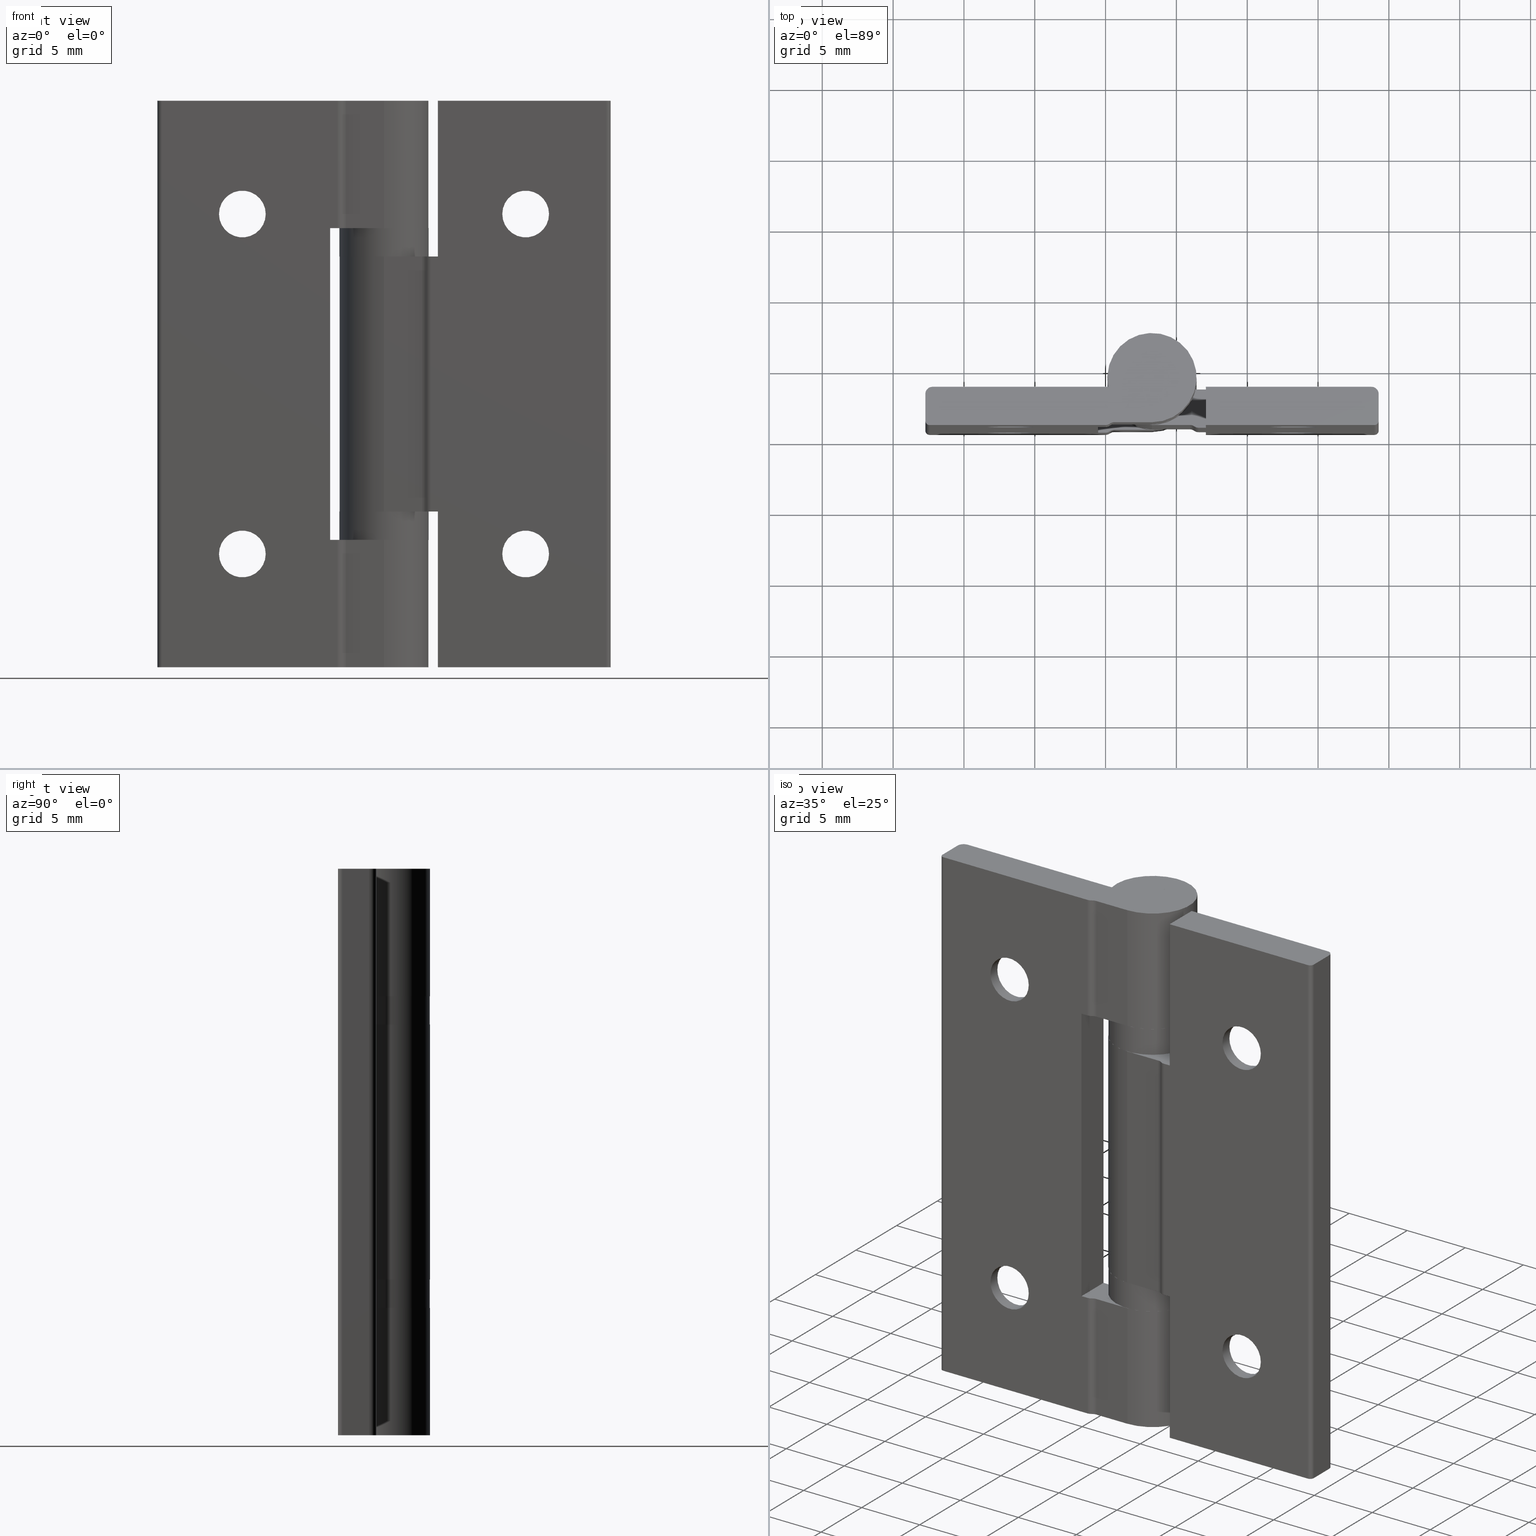
[diagram: canonical four-view strip — front | top / right | iso, engineering-drawing reading convention]
A machine part, canonical four-view strip (front | top / right | iso — engineering-drawing reading convention). The complete STEP part file that produces these views, byte-faithful:
ISO-10303-21;
HEADER;
/* Generated by software containing ST-Developer
 * from STEP Tools, Inc. (www.steptools.com) 
 */

FILE_DESCRIPTION(
/* description */ (''),
/* implementation_level */ '2;1');

FILE_NAME(
/* name */ '\\\\SYNOLOGYNAS\\web\\db2\\HA4032\\\X2\B3C4BA74\X0\\\HA403
2.stp',
/* time_stamp */ '2024-01-26T17:32:11+09:00',
/* author */ ('user'),
/* organization */ (''),
/* preprocessor_version */ 'ST-DEVELOPER v15.6',
/* originating_system */ 'Autodesk Inventor 2015',
/* authorisation */ '');

FILE_SCHEMA (('AUTOMOTIVE_DESIGN { 1 0 10303 214 3 1 1 }'));
ENDSEC;

DATA;
#10=MECHANICAL_DESIGN_GEOMETRIC_PRESENTATION_REPRESENTATION('',(#39,#40,
#41,#42),#1561);
#11=ITEM_DEFINED_TRANSFORMATION($,$,#902,#1008);
#12=ITEM_DEFINED_TRANSFORMATION($,$,#953,#1009);
#13=ITEM_DEFINED_TRANSFORMATION($,$,#953,#1010);
#14=ITEM_DEFINED_TRANSFORMATION($,$,#962,#1011);
#15=ITEM_DEFINED_TRANSFORMATION($,$,#968,#1012);
#16=(
REPRESENTATION_RELATIONSHIP($,$,#1583,#1587)
REPRESENTATION_RELATIONSHIP_WITH_TRANSFORMATION(#11)
SHAPE_REPRESENTATION_RELATIONSHIP()
);
#17=(
REPRESENTATION_RELATIONSHIP($,$,#1584,#1587)
REPRESENTATION_RELATIONSHIP_WITH_TRANSFORMATION(#12)
SHAPE_REPRESENTATION_RELATIONSHIP()
);
#18=(
REPRESENTATION_RELATIONSHIP($,$,#1584,#1587)
REPRESENTATION_RELATIONSHIP_WITH_TRANSFORMATION(#13)
SHAPE_REPRESENTATION_RELATIONSHIP()
);
#19=(
REPRESENTATION_RELATIONSHIP($,$,#1585,#1587)
REPRESENTATION_RELATIONSHIP_WITH_TRANSFORMATION(#14)
SHAPE_REPRESENTATION_RELATIONSHIP()
);
#20=(
REPRESENTATION_RELATIONSHIP($,$,#1586,#1587)
REPRESENTATION_RELATIONSHIP_WITH_TRANSFORMATION(#15)
SHAPE_REPRESENTATION_RELATIONSHIP()
);
#21=CONTEXT_DEPENDENT_SHAPE_REPRESENTATION(#16,#1578);
#22=CONTEXT_DEPENDENT_SHAPE_REPRESENTATION(#17,#1579);
#23=CONTEXT_DEPENDENT_SHAPE_REPRESENTATION(#18,#1580);
#24=CONTEXT_DEPENDENT_SHAPE_REPRESENTATION(#19,#1581);
#25=CONTEXT_DEPENDENT_SHAPE_REPRESENTATION(#20,#1582);
#26=NEXT_ASSEMBLY_USAGE_OCCURRENCE('HA4032_L:1',$,$,#1593,#1589,$);
#27=NEXT_ASSEMBLY_USAGE_OCCURRENCE('HA4032_W:1',$,$,#1593,#1590,$);
#28=NEXT_ASSEMBLY_USAGE_OCCURRENCE('HA4032_W:2',$,$,#1593,#1590,$);
#29=NEXT_ASSEMBLY_USAGE_OCCURRENCE('HA4032_P:1',$,$,#1593,#1591,$);
#30=NEXT_ASSEMBLY_USAGE_OCCURRENCE('HA4032_R:1',$,$,#1593,#1592,$);
#31=SHAPE_REPRESENTATION_RELATIONSHIP('SRR','None',#1583,#35);
#32=SHAPE_REPRESENTATION_RELATIONSHIP('SRR','None',#1584,#36);
#33=SHAPE_REPRESENTATION_RELATIONSHIP('SRR','None',#1585,#37);
#34=SHAPE_REPRESENTATION_RELATIONSHIP('SRR','None',#1586,#38);
#35=ADVANCED_BREP_SHAPE_REPRESENTATION($,(#43),#1556);
#36=ADVANCED_BREP_SHAPE_REPRESENTATION($,(#44),#1557);
#37=ADVANCED_BREP_SHAPE_REPRESENTATION($,(#45),#1558);
#38=ADVANCED_BREP_SHAPE_REPRESENTATION($,(#46),#1559);
#39=STYLED_ITEM('',(#1612),#43);
#40=STYLED_ITEM('',(#1613),#44);
#41=STYLED_ITEM('',(#1614),#45);
#42=STYLED_ITEM('',(#1615),#46);
#43=MANIFOLD_SOLID_BREP('\X2\C194B9ACB4DC\X0\1',#898);
#44=MANIFOLD_SOLID_BREP('\X2\C194B9ACB4DC\X0\1',#899);
#45=MANIFOLD_SOLID_BREP('\X2\C194B9ACB4DC\X0\1',#900);
#46=MANIFOLD_SOLID_BREP('\X2\C194B9ACB4DC\X0\2',#901);
#47=CONICAL_SURFACE('',#936,2.575,45.);
#48=CONICAL_SURFACE('',#940,2.575,45.);
#49=CONICAL_SURFACE('',#999,2.575,45.);
#50=CONICAL_SURFACE('',#1002,2.575,45.);
#51=CYLINDRICAL_SURFACE('',#917,3.15);
#52=CYLINDRICAL_SURFACE('',#919,3.15);
#53=CYLINDRICAL_SURFACE('',#922,0.5);
#54=CYLINDRICAL_SURFACE('',#924,0.5);
#55=CYLINDRICAL_SURFACE('',#926,1.25);
#56=CYLINDRICAL_SURFACE('',#928,0.3);
#57=CYLINDRICAL_SURFACE('',#934,0.5);
#58=CYLINDRICAL_SURFACE('',#938,1.65);
#59=CYLINDRICAL_SURFACE('',#942,1.65);
#60=CYLINDRICAL_SURFACE('',#944,0.5);
#61=CYLINDRICAL_SURFACE('',#947,0.5);
#62=CYLINDRICAL_SURFACE('',#950,1.25);
#63=CYLINDRICAL_SURFACE('',#954,1.25);
#64=CYLINDRICAL_SURFACE('',#957,3.15);
#65=CYLINDRICAL_SURFACE('',#963,1.25);
#66=CYLINDRICAL_SURFACE('',#982,0.5);
#67=CYLINDRICAL_SURFACE('',#983,0.5);
#68=CYLINDRICAL_SURFACE('',#990,0.3);
#69=CYLINDRICAL_SURFACE('',#995,0.5);
#70=CYLINDRICAL_SURFACE('',#1001,1.65);
#71=CYLINDRICAL_SURFACE('',#1004,1.65);
#72=CYLINDRICAL_SURFACE('',#1005,1.25);
#73=CYLINDRICAL_SURFACE('',#1006,3.15);
#74=FACE_BOUND('',#207,.T.);
#75=FACE_BOUND('',#209,.T.);
#76=FACE_BOUND('',#211,.T.);
#77=FACE_BOUND('',#212,.T.);
#78=FACE_BOUND('',#219,.T.);
#79=FACE_BOUND('',#222,.T.);
#80=FACE_BOUND('',#226,.T.);
#81=FACE_BOUND('',#228,.T.);
#82=FACE_BOUND('',#230,.T.);
#83=FACE_BOUND('',#232,.T.);
#84=FACE_BOUND('',#235,.T.);
#85=FACE_BOUND('',#236,.T.);
#86=FACE_BOUND('',#240,.T.);
#87=FACE_BOUND('',#242,.T.);
#88=FACE_BOUND('',#244,.T.);
#89=FACE_BOUND('',#246,.T.);
#90=FACE_BOUND('',#248,.T.);
#91=FACE_BOUND('',#250,.T.);
#92=FACE_BOUND('',#252,.T.);
#93=FACE_BOUND('',#256,.T.);
#94=FACE_BOUND('',#260,.T.);
#95=FACE_BOUND('',#265,.T.);
#96=FACE_BOUND('',#266,.T.);
#97=FACE_BOUND('',#273,.T.);
#98=FACE_BOUND('',#274,.T.);
#99=FACE_BOUND('',#276,.T.);
#100=FACE_BOUND('',#278,.T.);
#101=FACE_BOUND('',#280,.T.);
#102=FACE_BOUND('',#282,.T.);
#103=FACE_BOUND('',#284,.T.);
#104=CIRCLE('',#905,0.5);
#105=CIRCLE('',#906,0.5);
#106=CIRCLE('',#907,3.15);
#107=CIRCLE('',#908,1.25);
#108=CIRCLE('',#910,3.15);
#109=CIRCLE('',#911,0.5);
#110=CIRCLE('',#912,0.5);
#111=CIRCLE('',#913,1.25);
#112=CIRCLE('',#915,3.5);
#113=CIRCLE('',#916,3.5);
#114=CIRCLE('',#918,3.15);
#115=CIRCLE('',#920,3.15);
#116=CIRCLE('',#923,0.5);
#117=CIRCLE('',#925,0.5);
#118=CIRCLE('',#927,1.25);
#119=CIRCLE('',#929,0.3);
#120=CIRCLE('',#930,0.3);
#121=CIRCLE('',#932,0.5);
#122=CIRCLE('',#935,0.5);
#123=CIRCLE('',#937,1.65);
#124=CIRCLE('',#939,1.65);
#125=CIRCLE('',#941,1.65);
#126=CIRCLE('',#943,1.65);
#127=CIRCLE('',#945,0.5);
#128=CIRCLE('',#948,0.5);
#129=CIRCLE('',#951,1.25);
#130=CIRCLE('',#955,1.25);
#131=CIRCLE('',#956,1.25);
#132=CIRCLE('',#958,3.15);
#133=CIRCLE('',#959,3.15);
#134=CIRCLE('',#964,1.25);
#135=CIRCLE('',#965,1.25);
#136=CIRCLE('',#970,0.5);
#137=CIRCLE('',#971,0.5);
#138=CIRCLE('',#972,3.15);
#139=CIRCLE('',#973,1.25);
#140=CIRCLE('',#977,3.15);
#141=CIRCLE('',#978,0.5);
#142=CIRCLE('',#979,0.5);
#143=CIRCLE('',#980,1.25);
#144=CIRCLE('',#985,1.65);
#145=CIRCLE('',#986,1.65);
#146=CIRCLE('',#988,0.3);
#147=CIRCLE('',#989,0.5);
#148=CIRCLE('',#991,0.3);
#149=CIRCLE('',#994,0.5);
#150=CIRCLE('',#997,3.5);
#151=CIRCLE('',#998,3.5);
#152=CIRCLE('',#1000,1.65);
#153=CIRCLE('',#1003,1.65);
#154=FACE_OUTER_BOUND('',#205,.T.);
#155=FACE_OUTER_BOUND('',#206,.T.);
#156=FACE_OUTER_BOUND('',#208,.T.);
#157=FACE_OUTER_BOUND('',#210,.T.);
#158=FACE_OUTER_BOUND('',#213,.T.);
#159=FACE_OUTER_BOUND('',#214,.T.);
#160=FACE_OUTER_BOUND('',#215,.T.);
#161=FACE_OUTER_BOUND('',#216,.T.);
#162=FACE_OUTER_BOUND('',#217,.T.);
#163=FACE_OUTER_BOUND('',#218,.T.);
#164=FACE_OUTER_BOUND('',#220,.T.);
#165=FACE_OUTER_BOUND('',#221,.T.);
#166=FACE_OUTER_BOUND('',#223,.T.);
#167=FACE_OUTER_BOUND('',#224,.T.);
#168=FACE_OUTER_BOUND('',#225,.T.);
#169=FACE_OUTER_BOUND('',#227,.T.);
#170=FACE_OUTER_BOUND('',#229,.T.);
#171=FACE_OUTER_BOUND('',#231,.T.);
#172=FACE_OUTER_BOUND('',#233,.T.);
#173=FACE_OUTER_BOUND('',#234,.T.);
#174=FACE_OUTER_BOUND('',#237,.T.);
#175=FACE_OUTER_BOUND('',#238,.T.);
#176=FACE_OUTER_BOUND('',#239,.T.);
#177=FACE_OUTER_BOUND('',#241,.T.);
#178=FACE_OUTER_BOUND('',#243,.T.);
#179=FACE_OUTER_BOUND('',#245,.T.);
#180=FACE_OUTER_BOUND('',#247,.T.);
#181=FACE_OUTER_BOUND('',#249,.T.);
#182=FACE_OUTER_BOUND('',#251,.T.);
#183=FACE_OUTER_BOUND('',#253,.T.);
#184=FACE_OUTER_BOUND('',#254,.T.);
#185=FACE_OUTER_BOUND('',#255,.T.);
#186=FACE_OUTER_BOUND('',#257,.T.);
#187=FACE_OUTER_BOUND('',#258,.T.);
#188=FACE_OUTER_BOUND('',#259,.T.);
#189=FACE_OUTER_BOUND('',#261,.T.);
#190=FACE_OUTER_BOUND('',#262,.T.);
#191=FACE_OUTER_BOUND('',#263,.T.);
#192=FACE_OUTER_BOUND('',#264,.T.);
#193=FACE_OUTER_BOUND('',#267,.T.);
#194=FACE_OUTER_BOUND('',#268,.T.);
#195=FACE_OUTER_BOUND('',#269,.T.);
#196=FACE_OUTER_BOUND('',#270,.T.);
#197=FACE_OUTER_BOUND('',#271,.T.);
#198=FACE_OUTER_BOUND('',#272,.T.);
#199=FACE_OUTER_BOUND('',#275,.T.);
#200=FACE_OUTER_BOUND('',#277,.T.);
#201=FACE_OUTER_BOUND('',#279,.T.);
#202=FACE_OUTER_BOUND('',#281,.T.);
#203=FACE_OUTER_BOUND('',#283,.T.);
#204=FACE_OUTER_BOUND('',#285,.T.);
#205=EDGE_LOOP('',(#601,#602,#603,#604));
#206=EDGE_LOOP('',(#605,#606,#607,#608,#609,#610,#611));
#207=EDGE_LOOP('',(#612));
#208=EDGE_LOOP('',(#613,#614,#615,#616,#617,#618,#619));
#209=EDGE_LOOP('',(#620));
#210=EDGE_LOOP('',(#621,#622,#623,#624,#625,#626,#627,#628));
#211=EDGE_LOOP('',(#629));
#212=EDGE_LOOP('',(#630));
#213=EDGE_LOOP('',(#631,#632,#633,#634));
#214=EDGE_LOOP('',(#635,#636,#637,#638));
#215=EDGE_LOOP('',(#639,#640,#641,#642));
#216=EDGE_LOOP('',(#643,#644,#645,#646));
#217=EDGE_LOOP('',(#647,#648,#649,#650));
#218=EDGE_LOOP('',(#651));
#219=EDGE_LOOP('',(#652));
#220=EDGE_LOOP('',(#653,#654,#655,#656));
#221=EDGE_LOOP('',(#657,#658,#659,#660,#661,#662,#663,#664,#665));
#222=EDGE_LOOP('',(#666));
#223=EDGE_LOOP('',(#667,#668,#669,#670));
#224=EDGE_LOOP('',(#671,#672,#673,#674));
#225=EDGE_LOOP('',(#675));
#226=EDGE_LOOP('',(#676));
#227=EDGE_LOOP('',(#677));
#228=EDGE_LOOP('',(#678));
#229=EDGE_LOOP('',(#679));
#230=EDGE_LOOP('',(#680));
#231=EDGE_LOOP('',(#681));
#232=EDGE_LOOP('',(#682));
#233=EDGE_LOOP('',(#683,#684,#685,#686));
#234=EDGE_LOOP('',(#687,#688,#689,#690,#691,#692,#693,#694));
#235=EDGE_LOOP('',(#695));
#236=EDGE_LOOP('',(#696));
#237=EDGE_LOOP('',(#697,#698,#699,#700));
#238=EDGE_LOOP('',(#701,#702,#703,#704));
#239=EDGE_LOOP('',(#705));
#240=EDGE_LOOP('',(#706));
#241=EDGE_LOOP('',(#707,#708,#709,#710,#711,#712,#713,#714,#715));
#242=EDGE_LOOP('',(#716));
#243=EDGE_LOOP('',(#717));
#244=EDGE_LOOP('',(#718));
#245=EDGE_LOOP('',(#719));
#246=EDGE_LOOP('',(#720));
#247=EDGE_LOOP('',(#721));
#248=EDGE_LOOP('',(#722));
#249=EDGE_LOOP('',(#723));
#250=EDGE_LOOP('',(#724));
#251=EDGE_LOOP('',(#725));
#252=EDGE_LOOP('',(#726));
#253=EDGE_LOOP('',(#727));
#254=EDGE_LOOP('',(#728));
#255=EDGE_LOOP('',(#729,#730,#731,#732,#733,#734,#735));
#256=EDGE_LOOP('',(#736));
#257=EDGE_LOOP('',(#737,#738,#739,#740));
#258=EDGE_LOOP('',(#741,#742,#743,#744));
#259=EDGE_LOOP('',(#745,#746,#747,#748,#749,#750,#751));
#260=EDGE_LOOP('',(#752));
#261=EDGE_LOOP('',(#753,#754,#755,#756));
#262=EDGE_LOOP('',(#757,#758,#759,#760));
#263=EDGE_LOOP('',(#761,#762,#763,#764));
#264=EDGE_LOOP('',(#765,#766,#767,#768,#769,#770,#771,#772));
#265=EDGE_LOOP('',(#773));
#266=EDGE_LOOP('',(#774));
#267=EDGE_LOOP('',(#775,#776,#777,#778,#779,#780));
#268=EDGE_LOOP('',(#781,#782,#783,#784));
#269=EDGE_LOOP('',(#785,#786,#787,#788));
#270=EDGE_LOOP('',(#789,#790,#791,#792,#793,#794));
#271=EDGE_LOOP('',(#795,#796,#797,#798));
#272=EDGE_LOOP('',(#799,#800,#801,#802,#803,#804,#805,#806));
#273=EDGE_LOOP('',(#807));
#274=EDGE_LOOP('',(#808));
#275=EDGE_LOOP('',(#809));
#276=EDGE_LOOP('',(#810));
#277=EDGE_LOOP('',(#811));
#278=EDGE_LOOP('',(#812));
#279=EDGE_LOOP('',(#813));
#280=EDGE_LOOP('',(#814));
#281=EDGE_LOOP('',(#815));
#282=EDGE_LOOP('',(#816));
#283=EDGE_LOOP('',(#817));
#284=EDGE_LOOP('',(#818));
#285=EDGE_LOOP('',(#819,#820,#821,#822));
#286=LINE('',#1300,#347);
#287=LINE('',#1302,#348);
#288=LINE('',#1304,#349);
#289=LINE('',#1305,#350);
#290=LINE('',#1308,#351);
#291=LINE('',#1310,#352);
#292=LINE('',#1316,#353);
#293=LINE('',#1322,#354);
#294=LINE('',#1326,#355);
#295=LINE('',#1331,#356);
#296=LINE('',#1336,#357);
#297=LINE('',#1338,#358);
#298=LINE('',#1340,#359);
#299=LINE('',#1342,#360);
#300=LINE('',#1343,#361);
#301=LINE('',#1350,#362);
#302=LINE('',#1355,#363);
#303=LINE('',#1358,#364);
#304=LINE('',#1359,#365);
#305=LINE('',#1362,#366);
#306=LINE('',#1366,#367);
#307=LINE('',#1376,#368);
#308=LINE('',#1379,#369);
#309=LINE('',#1382,#370);
#310=LINE('',#1384,#371);
#311=LINE('',#1387,#372);
#312=LINE('',#1388,#373);
#313=LINE('',#1405,#374);
#314=LINE('',#1408,#375);
#315=LINE('',#1410,#376);
#316=LINE('',#1413,#377);
#317=LINE('',#1416,#378);
#318=LINE('',#1446,#379);
#319=LINE('',#1448,#380);
#320=LINE('',#1450,#381);
#321=LINE('',#1456,#382);
#322=LINE('',#1462,#383);
#323=LINE('',#1464,#384);
#324=LINE('',#1465,#385);
#325=LINE('',#1469,#386);
#326=LINE('',#1471,#387);
#327=LINE('',#1473,#388);
#328=LINE('',#1474,#389);
#329=LINE('',#1477,#390);
#330=LINE('',#1481,#391);
#331=LINE('',#1486,#392);
#332=LINE('',#1490,#393);
#333=LINE('',#1491,#394);
#334=LINE('',#1493,#395);
#335=LINE('',#1495,#396);
#336=LINE('',#1498,#397);
#337=LINE('',#1500,#398);
#338=LINE('',#1501,#399);
#339=LINE('',#1510,#400);
#340=LINE('',#1513,#401);
#341=LINE('',#1517,#402);
#342=LINE('',#1520,#403);
#343=LINE('',#1521,#404);
#344=LINE('',#1524,#405);
#345=LINE('',#1527,#406);
#346=LINE('',#1529,#407);
#347=VECTOR('',#1017,22.);
#348=VECTOR('',#1018,2.7);
#349=VECTOR('',#1019,22.);
#350=VECTOR('',#1020,2.7);
#351=VECTOR('',#1023,0.717792998515515);
#352=VECTOR('',#1024,0.517792998515516);
#353=VECTOR('',#1029,2.68220700148449);
#354=VECTOR('',#1036,0.717792998515513);
#355=VECTOR('',#1039,2.68220700148449);
#356=VECTOR('',#1044,0.517792998515513);
#357=VECTOR('',#1049,9.);
#358=VECTOR('',#1050,12.4177929985155);
#359=VECTOR('',#1051,40.);
#360=VECTOR('',#1052,12.4177929985155);
#361=VECTOR('',#1053,9.);
#362=VECTOR('',#1060,9.);
#363=VECTOR('',#1067,9.);
#364=VECTOR('',#1070,9.);
#365=VECTOR('',#1071,2.68220700148449);
#366=VECTOR('',#1074,9.);
#367=VECTOR('',#1079,9.);
#368=VECTOR('',#1090,40.);
#369=VECTOR('',#1093,40.);
#370=VECTOR('',#1096,1.9);
#371=VECTOR('',#1099,12.4177929985155);
#372=VECTOR('',#1102,1.9);
#373=VECTOR('',#1103,40.);
#374=VECTOR('',#1126,9.);
#375=VECTOR('',#1129,9.);
#376=VECTOR('',#1132,12.4177929985155);
#377=VECTOR('',#1135,9.);
#378=VECTOR('',#1140,2.68220700148449);
#379=VECTOR('',#1181,0.717792998515512);
#380=VECTOR('',#1182,2.7);
#381=VECTOR('',#1183,0.51779299851551);
#382=VECTOR('',#1188,2.68220700148449);
#383=VECTOR('',#1195,11.);
#384=VECTOR('',#1196,2.7);
#385=VECTOR('',#1197,11.);
#386=VECTOR('',#1200,11.);
#387=VECTOR('',#1201,2.7);
#388=VECTOR('',#1202,11.);
#389=VECTOR('',#1203,2.7);
#390=VECTOR('',#1206,0.717792998515512);
#391=VECTOR('',#1209,2.68220700148449);
#392=VECTOR('',#1214,0.517792998515511);
#393=VECTOR('',#1219,18.);
#394=VECTOR('',#1220,18.);
#395=VECTOR('',#1223,18.);
#396=VECTOR('',#1226,18.);
#397=VECTOR('',#1229,11.9);
#398=VECTOR('',#1230,40.);
#399=VECTOR('',#1231,11.9);
#400=VECTOR('',#1240,1.9);
#401=VECTOR('',#1243,11.7);
#402=VECTOR('',#1248,40.);
#403=VECTOR('',#1251,1.9);
#404=VECTOR('',#1252,40.);
#405=VECTOR('',#1255,11.7);
#406=VECTOR('',#1260,40.);
#407=VECTOR('',#1263,18.);
#408=VERTEX_POINT('',#1298);
#409=VERTEX_POINT('',#1299);
#410=VERTEX_POINT('',#1301);
#411=VERTEX_POINT('',#1303);
#412=VERTEX_POINT('',#1307);
#413=VERTEX_POINT('',#1309);
#414=VERTEX_POINT('',#1311);
#415=VERTEX_POINT('',#1313);
#416=VERTEX_POINT('',#1315);
#417=VERTEX_POINT('',#1318);
#418=VERTEX_POINT('',#1321);
#419=VERTEX_POINT('',#1323);
#420=VERTEX_POINT('',#1325);
#421=VERTEX_POINT('',#1327);
#422=VERTEX_POINT('',#1329);
#423=VERTEX_POINT('',#1332);
#424=VERTEX_POINT('',#1335);
#425=VERTEX_POINT('',#1337);
#426=VERTEX_POINT('',#1339);
#427=VERTEX_POINT('',#1341);
#428=VERTEX_POINT('',#1344);
#429=VERTEX_POINT('',#1346);
#430=VERTEX_POINT('',#1349);
#431=VERTEX_POINT('',#1353);
#432=VERTEX_POINT('',#1357);
#433=VERTEX_POINT('',#1361);
#434=VERTEX_POINT('',#1365);
#435=VERTEX_POINT('',#1369);
#436=VERTEX_POINT('',#1372);
#437=VERTEX_POINT('',#1373);
#438=VERTEX_POINT('',#1375);
#439=VERTEX_POINT('',#1377);
#440=VERTEX_POINT('',#1381);
#441=VERTEX_POINT('',#1386);
#442=VERTEX_POINT('',#1392);
#443=VERTEX_POINT('',#1395);
#444=VERTEX_POINT('',#1398);
#445=VERTEX_POINT('',#1401);
#446=VERTEX_POINT('',#1404);
#447=VERTEX_POINT('',#1406);
#448=VERTEX_POINT('',#1412);
#449=VERTEX_POINT('',#1418);
#450=VERTEX_POINT('',#1423);
#451=VERTEX_POINT('',#1425);
#452=VERTEX_POINT('',#1428);
#453=VERTEX_POINT('',#1430);
#454=VERTEX_POINT('',#1436);
#455=VERTEX_POINT('',#1438);
#456=VERTEX_POINT('',#1444);
#457=VERTEX_POINT('',#1445);
#458=VERTEX_POINT('',#1447);
#459=VERTEX_POINT('',#1449);
#460=VERTEX_POINT('',#1451);
#461=VERTEX_POINT('',#1453);
#462=VERTEX_POINT('',#1455);
#463=VERTEX_POINT('',#1458);
#464=VERTEX_POINT('',#1461);
#465=VERTEX_POINT('',#1463);
#466=VERTEX_POINT('',#1467);
#467=VERTEX_POINT('',#1468);
#468=VERTEX_POINT('',#1470);
#469=VERTEX_POINT('',#1472);
#470=VERTEX_POINT('',#1476);
#471=VERTEX_POINT('',#1478);
#472=VERTEX_POINT('',#1480);
#473=VERTEX_POINT('',#1482);
#474=VERTEX_POINT('',#1484);
#475=VERTEX_POINT('',#1487);
#476=VERTEX_POINT('',#1497);
#477=VERTEX_POINT('',#1499);
#478=VERTEX_POINT('',#1502);
#479=VERTEX_POINT('',#1504);
#480=VERTEX_POINT('',#1507);
#481=VERTEX_POINT('',#1509);
#482=VERTEX_POINT('',#1511);
#483=VERTEX_POINT('',#1515);
#484=VERTEX_POINT('',#1519);
#485=VERTEX_POINT('',#1523);
#486=VERTEX_POINT('',#1530);
#487=VERTEX_POINT('',#1532);
#488=VERTEX_POINT('',#1535);
#489=VERTEX_POINT('',#1539);
#490=EDGE_CURVE('',#408,#409,#286,.T.);
#491=EDGE_CURVE('',#408,#410,#287,.T.);
#492=EDGE_CURVE('',#411,#410,#288,.T.);
#493=EDGE_CURVE('',#411,#409,#289,.T.);
#494=EDGE_CURVE('',#409,#412,#290,.T.);
#495=EDGE_CURVE('',#413,#411,#291,.T.);
#496=EDGE_CURVE('',#414,#413,#104,.T.);
#497=EDGE_CURVE('',#415,#414,#105,.T.);
#498=EDGE_CURVE('',#416,#415,#292,.T.);
#499=EDGE_CURVE('',#412,#416,#106,.T.);
#500=EDGE_CURVE('',#417,#417,#107,.T.);
#501=EDGE_CURVE('',#418,#408,#293,.T.);
#502=EDGE_CURVE('',#419,#418,#108,.T.);
#503=EDGE_CURVE('',#420,#419,#294,.T.);
#504=EDGE_CURVE('',#421,#420,#109,.T.);
#505=EDGE_CURVE('',#422,#421,#110,.T.);
#506=EDGE_CURVE('',#410,#422,#295,.T.);
#507=EDGE_CURVE('',#423,#423,#111,.T.);
#508=EDGE_CURVE('',#424,#412,#296,.T.);
#509=EDGE_CURVE('',#425,#424,#297,.T.);
#510=EDGE_CURVE('',#426,#425,#298,.T.);
#511=EDGE_CURVE('',#426,#427,#299,.T.);
#512=EDGE_CURVE('',#418,#427,#300,.T.);
#513=EDGE_CURVE('',#428,#428,#112,.T.);
#514=EDGE_CURVE('',#429,#429,#113,.T.);
#515=EDGE_CURVE('',#416,#430,#301,.T.);
#516=EDGE_CURVE('',#424,#430,#114,.T.);
#517=EDGE_CURVE('',#427,#431,#115,.T.);
#518=EDGE_CURVE('',#431,#419,#302,.T.);
#519=EDGE_CURVE('',#432,#415,#303,.T.);
#520=EDGE_CURVE('',#430,#432,#304,.T.);
#521=EDGE_CURVE('',#433,#414,#305,.T.);
#522=EDGE_CURVE('',#433,#432,#116,.T.);
#523=EDGE_CURVE('',#413,#434,#306,.T.);
#524=EDGE_CURVE('',#434,#433,#117,.T.);
#525=EDGE_CURVE('',#435,#435,#118,.T.);
#526=EDGE_CURVE('',#436,#437,#119,.T.);
#527=EDGE_CURVE('',#437,#438,#307,.T.);
#528=EDGE_CURVE('',#438,#439,#120,.T.);
#529=EDGE_CURVE('',#439,#436,#308,.T.);
#530=EDGE_CURVE('',#436,#440,#309,.T.);
#531=EDGE_CURVE('',#425,#440,#121,.T.);
#532=EDGE_CURVE('',#434,#437,#310,.T.);
#533=EDGE_CURVE('',#439,#441,#311,.T.);
#534=EDGE_CURVE('',#440,#441,#312,.T.);
#535=EDGE_CURVE('',#441,#426,#122,.T.);
#536=EDGE_CURVE('',#442,#442,#123,.T.);
#537=EDGE_CURVE('',#443,#443,#124,.T.);
#538=EDGE_CURVE('',#444,#444,#125,.T.);
#539=EDGE_CURVE('',#445,#445,#126,.T.);
#540=EDGE_CURVE('',#421,#446,#313,.T.);
#541=EDGE_CURVE('',#446,#447,#127,.T.);
#542=EDGE_CURVE('',#447,#422,#314,.T.);
#543=EDGE_CURVE('',#447,#438,#315,.T.);
#544=EDGE_CURVE('',#420,#448,#316,.T.);
#545=EDGE_CURVE('',#446,#448,#128,.F.);
#546=EDGE_CURVE('',#448,#431,#317,.T.);
#547=EDGE_CURVE('',#449,#449,#129,.T.);
#548=EDGE_CURVE('',#450,#450,#130,.T.);
#549=EDGE_CURVE('',#451,#451,#131,.T.);
#550=EDGE_CURVE('',#452,#452,#132,.T.);
#551=EDGE_CURVE('',#453,#453,#133,.T.);
#552=EDGE_CURVE('',#454,#454,#134,.T.);
#553=EDGE_CURVE('',#455,#455,#135,.T.);
#554=EDGE_CURVE('',#456,#457,#318,.T.);
#555=EDGE_CURVE('',#456,#458,#319,.T.);
#556=EDGE_CURVE('',#459,#458,#320,.T.);
#557=EDGE_CURVE('',#460,#459,#136,.T.);
#558=EDGE_CURVE('',#461,#460,#137,.T.);
#559=EDGE_CURVE('',#462,#461,#321,.T.);
#560=EDGE_CURVE('',#457,#462,#138,.T.);
#561=EDGE_CURVE('',#463,#463,#139,.T.);
#562=EDGE_CURVE('',#464,#456,#322,.T.);
#563=EDGE_CURVE('',#465,#464,#323,.T.);
#564=EDGE_CURVE('',#458,#465,#324,.T.);
#565=EDGE_CURVE('',#466,#467,#325,.T.);
#566=EDGE_CURVE('',#468,#466,#326,.T.);
#567=EDGE_CURVE('',#469,#468,#327,.T.);
#568=EDGE_CURVE('',#467,#469,#328,.T.);
#569=EDGE_CURVE('',#470,#466,#329,.T.);
#570=EDGE_CURVE('',#471,#470,#140,.T.);
#571=EDGE_CURVE('',#472,#471,#330,.T.);
#572=EDGE_CURVE('',#473,#472,#141,.T.);
#573=EDGE_CURVE('',#474,#473,#142,.T.);
#574=EDGE_CURVE('',#468,#474,#331,.T.);
#575=EDGE_CURVE('',#475,#475,#143,.T.);
#576=EDGE_CURVE('',#472,#461,#332,.T.);
#577=EDGE_CURVE('',#462,#471,#333,.T.);
#578=EDGE_CURVE('',#473,#460,#334,.T.);
#579=EDGE_CURVE('',#459,#474,#335,.T.);
#580=EDGE_CURVE('',#476,#465,#336,.T.);
#581=EDGE_CURVE('',#477,#476,#337,.T.);
#582=EDGE_CURVE('',#477,#469,#338,.T.);
#583=EDGE_CURVE('',#478,#478,#144,.T.);
#584=EDGE_CURVE('',#479,#479,#145,.T.);
#585=EDGE_CURVE('',#480,#477,#146,.T.);
#586=EDGE_CURVE('',#481,#480,#339,.T.);
#587=EDGE_CURVE('',#482,#481,#147,.T.);
#588=EDGE_CURVE('',#467,#482,#340,.T.);
#589=EDGE_CURVE('',#476,#483,#148,.T.);
#590=EDGE_CURVE('',#483,#480,#341,.T.);
#591=EDGE_CURVE('',#484,#483,#342,.T.);
#592=EDGE_CURVE('',#481,#484,#343,.T.);
#593=EDGE_CURVE('',#464,#485,#344,.T.);
#594=EDGE_CURVE('',#484,#485,#149,.T.);
#595=EDGE_CURVE('',#485,#482,#345,.T.);
#596=EDGE_CURVE('',#470,#457,#346,.T.);
#597=EDGE_CURVE('',#486,#486,#150,.T.);
#598=EDGE_CURVE('',#487,#487,#151,.T.);
#599=EDGE_CURVE('',#488,#488,#152,.T.);
#600=EDGE_CURVE('',#489,#489,#153,.T.);
#601=ORIENTED_EDGE('',*,*,#490,.F.);
#602=ORIENTED_EDGE('',*,*,#491,.T.);
#603=ORIENTED_EDGE('',*,*,#492,.F.);
#604=ORIENTED_EDGE('',*,*,#493,.T.);
#605=ORIENTED_EDGE('',*,*,#494,.F.);
#606=ORIENTED_EDGE('',*,*,#493,.F.);
#607=ORIENTED_EDGE('',*,*,#495,.F.);
#608=ORIENTED_EDGE('',*,*,#496,.F.);
#609=ORIENTED_EDGE('',*,*,#497,.F.);
#610=ORIENTED_EDGE('',*,*,#498,.F.);
#611=ORIENTED_EDGE('',*,*,#499,.F.);
#612=ORIENTED_EDGE('',*,*,#500,.F.);
#613=ORIENTED_EDGE('',*,*,#501,.F.);
#614=ORIENTED_EDGE('',*,*,#502,.F.);
#615=ORIENTED_EDGE('',*,*,#503,.F.);
#616=ORIENTED_EDGE('',*,*,#504,.F.);
#617=ORIENTED_EDGE('',*,*,#505,.F.);
#618=ORIENTED_EDGE('',*,*,#506,.F.);
#619=ORIENTED_EDGE('',*,*,#491,.F.);
#620=ORIENTED_EDGE('',*,*,#507,.F.);
#621=ORIENTED_EDGE('',*,*,#501,.T.);
#622=ORIENTED_EDGE('',*,*,#490,.T.);
#623=ORIENTED_EDGE('',*,*,#494,.T.);
#624=ORIENTED_EDGE('',*,*,#508,.F.);
#625=ORIENTED_EDGE('',*,*,#509,.F.);
#626=ORIENTED_EDGE('',*,*,#510,.F.);
#627=ORIENTED_EDGE('',*,*,#511,.T.);
#628=ORIENTED_EDGE('',*,*,#512,.F.);
#629=ORIENTED_EDGE('',*,*,#513,.T.);
#630=ORIENTED_EDGE('',*,*,#514,.T.);
#631=ORIENTED_EDGE('',*,*,#499,.T.);
#632=ORIENTED_EDGE('',*,*,#515,.T.);
#633=ORIENTED_EDGE('',*,*,#516,.F.);
#634=ORIENTED_EDGE('',*,*,#508,.T.);
#635=ORIENTED_EDGE('',*,*,#502,.T.);
#636=ORIENTED_EDGE('',*,*,#512,.T.);
#637=ORIENTED_EDGE('',*,*,#517,.T.);
#638=ORIENTED_EDGE('',*,*,#518,.T.);
#639=ORIENTED_EDGE('',*,*,#498,.T.);
#640=ORIENTED_EDGE('',*,*,#519,.F.);
#641=ORIENTED_EDGE('',*,*,#520,.F.);
#642=ORIENTED_EDGE('',*,*,#515,.F.);
#643=ORIENTED_EDGE('',*,*,#497,.T.);
#644=ORIENTED_EDGE('',*,*,#521,.F.);
#645=ORIENTED_EDGE('',*,*,#522,.T.);
#646=ORIENTED_EDGE('',*,*,#519,.T.);
#647=ORIENTED_EDGE('',*,*,#496,.T.);
#648=ORIENTED_EDGE('',*,*,#523,.T.);
#649=ORIENTED_EDGE('',*,*,#524,.T.);
#650=ORIENTED_EDGE('',*,*,#521,.T.);
#651=ORIENTED_EDGE('',*,*,#525,.F.);
#652=ORIENTED_EDGE('',*,*,#500,.T.);
#653=ORIENTED_EDGE('',*,*,#526,.T.);
#654=ORIENTED_EDGE('',*,*,#527,.T.);
#655=ORIENTED_EDGE('',*,*,#528,.T.);
#656=ORIENTED_EDGE('',*,*,#529,.T.);
#657=ORIENTED_EDGE('',*,*,#526,.F.);
#658=ORIENTED_EDGE('',*,*,#530,.T.);
#659=ORIENTED_EDGE('',*,*,#531,.F.);
#660=ORIENTED_EDGE('',*,*,#509,.T.);
#661=ORIENTED_EDGE('',*,*,#516,.T.);
#662=ORIENTED_EDGE('',*,*,#520,.T.);
#663=ORIENTED_EDGE('',*,*,#522,.F.);
#664=ORIENTED_EDGE('',*,*,#524,.F.);
#665=ORIENTED_EDGE('',*,*,#532,.T.);
#666=ORIENTED_EDGE('',*,*,#525,.T.);
#667=ORIENTED_EDGE('',*,*,#529,.F.);
#668=ORIENTED_EDGE('',*,*,#533,.T.);
#669=ORIENTED_EDGE('',*,*,#534,.F.);
#670=ORIENTED_EDGE('',*,*,#530,.F.);
#671=ORIENTED_EDGE('',*,*,#531,.T.);
#672=ORIENTED_EDGE('',*,*,#534,.T.);
#673=ORIENTED_EDGE('',*,*,#535,.T.);
#674=ORIENTED_EDGE('',*,*,#510,.T.);
#675=ORIENTED_EDGE('',*,*,#514,.F.);
#676=ORIENTED_EDGE('',*,*,#536,.F.);
#677=ORIENTED_EDGE('',*,*,#537,.F.);
#678=ORIENTED_EDGE('',*,*,#536,.T.);
#679=ORIENTED_EDGE('',*,*,#513,.F.);
#680=ORIENTED_EDGE('',*,*,#538,.F.);
#681=ORIENTED_EDGE('',*,*,#539,.F.);
#682=ORIENTED_EDGE('',*,*,#538,.T.);
#683=ORIENTED_EDGE('',*,*,#505,.T.);
#684=ORIENTED_EDGE('',*,*,#540,.T.);
#685=ORIENTED_EDGE('',*,*,#541,.T.);
#686=ORIENTED_EDGE('',*,*,#542,.T.);
#687=ORIENTED_EDGE('',*,*,#506,.T.);
#688=ORIENTED_EDGE('',*,*,#542,.F.);
#689=ORIENTED_EDGE('',*,*,#543,.T.);
#690=ORIENTED_EDGE('',*,*,#527,.F.);
#691=ORIENTED_EDGE('',*,*,#532,.F.);
#692=ORIENTED_EDGE('',*,*,#523,.F.);
#693=ORIENTED_EDGE('',*,*,#495,.T.);
#694=ORIENTED_EDGE('',*,*,#492,.T.);
#695=ORIENTED_EDGE('',*,*,#537,.T.);
#696=ORIENTED_EDGE('',*,*,#539,.T.);
#697=ORIENTED_EDGE('',*,*,#504,.T.);
#698=ORIENTED_EDGE('',*,*,#544,.T.);
#699=ORIENTED_EDGE('',*,*,#545,.F.);
#700=ORIENTED_EDGE('',*,*,#540,.F.);
#701=ORIENTED_EDGE('',*,*,#503,.T.);
#702=ORIENTED_EDGE('',*,*,#518,.F.);
#703=ORIENTED_EDGE('',*,*,#546,.F.);
#704=ORIENTED_EDGE('',*,*,#544,.F.);
#705=ORIENTED_EDGE('',*,*,#507,.T.);
#706=ORIENTED_EDGE('',*,*,#547,.F.);
#707=ORIENTED_EDGE('',*,*,#528,.F.);
#708=ORIENTED_EDGE('',*,*,#543,.F.);
#709=ORIENTED_EDGE('',*,*,#541,.F.);
#710=ORIENTED_EDGE('',*,*,#545,.T.);
#711=ORIENTED_EDGE('',*,*,#546,.T.);
#712=ORIENTED_EDGE('',*,*,#517,.F.);
#713=ORIENTED_EDGE('',*,*,#511,.F.);
#714=ORIENTED_EDGE('',*,*,#535,.F.);
#715=ORIENTED_EDGE('',*,*,#533,.F.);
#716=ORIENTED_EDGE('',*,*,#547,.T.);
#717=ORIENTED_EDGE('',*,*,#548,.F.);
#718=ORIENTED_EDGE('',*,*,#549,.F.);
#719=ORIENTED_EDGE('',*,*,#550,.F.);
#720=ORIENTED_EDGE('',*,*,#551,.F.);
#721=ORIENTED_EDGE('',*,*,#551,.T.);
#722=ORIENTED_EDGE('',*,*,#549,.T.);
#723=ORIENTED_EDGE('',*,*,#550,.T.);
#724=ORIENTED_EDGE('',*,*,#548,.T.);
#725=ORIENTED_EDGE('',*,*,#552,.F.);
#726=ORIENTED_EDGE('',*,*,#553,.T.);
#727=ORIENTED_EDGE('',*,*,#552,.T.);
#728=ORIENTED_EDGE('',*,*,#553,.F.);
#729=ORIENTED_EDGE('',*,*,#554,.F.);
#730=ORIENTED_EDGE('',*,*,#555,.T.);
#731=ORIENTED_EDGE('',*,*,#556,.F.);
#732=ORIENTED_EDGE('',*,*,#557,.F.);
#733=ORIENTED_EDGE('',*,*,#558,.F.);
#734=ORIENTED_EDGE('',*,*,#559,.F.);
#735=ORIENTED_EDGE('',*,*,#560,.F.);
#736=ORIENTED_EDGE('',*,*,#561,.F.);
#737=ORIENTED_EDGE('',*,*,#562,.F.);
#738=ORIENTED_EDGE('',*,*,#563,.F.);
#739=ORIENTED_EDGE('',*,*,#564,.F.);
#740=ORIENTED_EDGE('',*,*,#555,.F.);
#741=ORIENTED_EDGE('',*,*,#565,.F.);
#742=ORIENTED_EDGE('',*,*,#566,.F.);
#743=ORIENTED_EDGE('',*,*,#567,.F.);
#744=ORIENTED_EDGE('',*,*,#568,.F.);
#745=ORIENTED_EDGE('',*,*,#569,.F.);
#746=ORIENTED_EDGE('',*,*,#570,.F.);
#747=ORIENTED_EDGE('',*,*,#571,.F.);
#748=ORIENTED_EDGE('',*,*,#572,.F.);
#749=ORIENTED_EDGE('',*,*,#573,.F.);
#750=ORIENTED_EDGE('',*,*,#574,.F.);
#751=ORIENTED_EDGE('',*,*,#566,.T.);
#752=ORIENTED_EDGE('',*,*,#575,.F.);
#753=ORIENTED_EDGE('',*,*,#559,.T.);
#754=ORIENTED_EDGE('',*,*,#576,.F.);
#755=ORIENTED_EDGE('',*,*,#571,.T.);
#756=ORIENTED_EDGE('',*,*,#577,.F.);
#757=ORIENTED_EDGE('',*,*,#558,.T.);
#758=ORIENTED_EDGE('',*,*,#578,.F.);
#759=ORIENTED_EDGE('',*,*,#572,.T.);
#760=ORIENTED_EDGE('',*,*,#576,.T.);
#761=ORIENTED_EDGE('',*,*,#557,.T.);
#762=ORIENTED_EDGE('',*,*,#579,.T.);
#763=ORIENTED_EDGE('',*,*,#573,.T.);
#764=ORIENTED_EDGE('',*,*,#578,.T.);
#765=ORIENTED_EDGE('',*,*,#556,.T.);
#766=ORIENTED_EDGE('',*,*,#564,.T.);
#767=ORIENTED_EDGE('',*,*,#580,.F.);
#768=ORIENTED_EDGE('',*,*,#581,.F.);
#769=ORIENTED_EDGE('',*,*,#582,.T.);
#770=ORIENTED_EDGE('',*,*,#567,.T.);
#771=ORIENTED_EDGE('',*,*,#574,.T.);
#772=ORIENTED_EDGE('',*,*,#579,.F.);
#773=ORIENTED_EDGE('',*,*,#583,.T.);
#774=ORIENTED_EDGE('',*,*,#584,.T.);
#775=ORIENTED_EDGE('',*,*,#568,.T.);
#776=ORIENTED_EDGE('',*,*,#582,.F.);
#777=ORIENTED_EDGE('',*,*,#585,.F.);
#778=ORIENTED_EDGE('',*,*,#586,.F.);
#779=ORIENTED_EDGE('',*,*,#587,.F.);
#780=ORIENTED_EDGE('',*,*,#588,.F.);
#781=ORIENTED_EDGE('',*,*,#589,.T.);
#782=ORIENTED_EDGE('',*,*,#590,.T.);
#783=ORIENTED_EDGE('',*,*,#585,.T.);
#784=ORIENTED_EDGE('',*,*,#581,.T.);
#785=ORIENTED_EDGE('',*,*,#590,.F.);
#786=ORIENTED_EDGE('',*,*,#591,.F.);
#787=ORIENTED_EDGE('',*,*,#592,.F.);
#788=ORIENTED_EDGE('',*,*,#586,.T.);
#789=ORIENTED_EDGE('',*,*,#563,.T.);
#790=ORIENTED_EDGE('',*,*,#593,.T.);
#791=ORIENTED_EDGE('',*,*,#594,.F.);
#792=ORIENTED_EDGE('',*,*,#591,.T.);
#793=ORIENTED_EDGE('',*,*,#589,.F.);
#794=ORIENTED_EDGE('',*,*,#580,.T.);
#795=ORIENTED_EDGE('',*,*,#594,.T.);
#796=ORIENTED_EDGE('',*,*,#595,.T.);
#797=ORIENTED_EDGE('',*,*,#587,.T.);
#798=ORIENTED_EDGE('',*,*,#592,.T.);
#799=ORIENTED_EDGE('',*,*,#554,.T.);
#800=ORIENTED_EDGE('',*,*,#596,.F.);
#801=ORIENTED_EDGE('',*,*,#569,.T.);
#802=ORIENTED_EDGE('',*,*,#565,.T.);
#803=ORIENTED_EDGE('',*,*,#588,.T.);
#804=ORIENTED_EDGE('',*,*,#595,.F.);
#805=ORIENTED_EDGE('',*,*,#593,.F.);
#806=ORIENTED_EDGE('',*,*,#562,.T.);
#807=ORIENTED_EDGE('',*,*,#597,.T.);
#808=ORIENTED_EDGE('',*,*,#598,.T.);
#809=ORIENTED_EDGE('',*,*,#598,.F.);
#810=ORIENTED_EDGE('',*,*,#599,.F.);
#811=ORIENTED_EDGE('',*,*,#584,.F.);
#812=ORIENTED_EDGE('',*,*,#599,.T.);
#813=ORIENTED_EDGE('',*,*,#597,.F.);
#814=ORIENTED_EDGE('',*,*,#600,.F.);
#815=ORIENTED_EDGE('',*,*,#583,.F.);
#816=ORIENTED_EDGE('',*,*,#600,.T.);
#817=ORIENTED_EDGE('',*,*,#561,.T.);
#818=ORIENTED_EDGE('',*,*,#575,.T.);
#819=ORIENTED_EDGE('',*,*,#560,.T.);
#820=ORIENTED_EDGE('',*,*,#577,.T.);
#821=ORIENTED_EDGE('',*,*,#570,.T.);
#822=ORIENTED_EDGE('',*,*,#596,.T.);
#823=PLANE('',#903);
#824=PLANE('',#904);
#825=PLANE('',#909);
#826=PLANE('',#914);
#827=PLANE('',#921);
#828=PLANE('',#931);
#829=PLANE('',#933);
#830=PLANE('',#946);
#831=PLANE('',#949);
#832=PLANE('',#952);
#833=PLANE('',#960);
#834=PLANE('',#961);
#835=PLANE('',#966);
#836=PLANE('',#967);
#837=PLANE('',#969);
#838=PLANE('',#974);
#839=PLANE('',#975);
#840=PLANE('',#976);
#841=PLANE('',#981);
#842=PLANE('',#984);
#843=PLANE('',#987);
#844=PLANE('',#992);
#845=PLANE('',#993);
#846=PLANE('',#996);
#847=ADVANCED_FACE('',(#154),#823,.F.);
#848=ADVANCED_FACE('',(#155,#74),#824,.F.);
#849=ADVANCED_FACE('',(#156,#75),#825,.F.);
#850=ADVANCED_FACE('',(#157,#76,#77),#826,.T.);
#851=ADVANCED_FACE('',(#158),#51,.T.);
#852=ADVANCED_FACE('',(#159),#52,.T.);
#853=ADVANCED_FACE('',(#160),#827,.F.);
#854=ADVANCED_FACE('',(#161),#53,.F.);
#855=ADVANCED_FACE('',(#162),#54,.T.);
#856=ADVANCED_FACE('',(#163,#78),#55,.F.);
#857=ADVANCED_FACE('',(#164),#56,.T.);
#858=ADVANCED_FACE('',(#165,#79),#828,.T.);
#859=ADVANCED_FACE('',(#166),#829,.T.);
#860=ADVANCED_FACE('',(#167),#57,.T.);
#861=ADVANCED_FACE('',(#168,#80),#47,.F.);
#862=ADVANCED_FACE('',(#169,#81),#58,.F.);
#863=ADVANCED_FACE('',(#170,#82),#48,.F.);
#864=ADVANCED_FACE('',(#171,#83),#59,.F.);
#865=ADVANCED_FACE('',(#172),#60,.T.);
#866=ADVANCED_FACE('',(#173,#84,#85),#830,.T.);
#867=ADVANCED_FACE('',(#174),#61,.F.);
#868=ADVANCED_FACE('',(#175),#831,.F.);
#869=ADVANCED_FACE('',(#176,#86),#62,.F.);
#870=ADVANCED_FACE('',(#177,#87),#832,.T.);
#871=ADVANCED_FACE('',(#178,#88),#63,.F.);
#872=ADVANCED_FACE('',(#179,#89),#64,.T.);
#873=ADVANCED_FACE('',(#180,#90),#833,.F.);
#874=ADVANCED_FACE('',(#181,#91),#834,.T.);
#875=ADVANCED_FACE('',(#182,#92),#65,.T.);
#876=ADVANCED_FACE('',(#183),#835,.F.);
#877=ADVANCED_FACE('',(#184),#836,.T.);
#878=ADVANCED_FACE('',(#185,#93),#837,.F.);
#879=ADVANCED_FACE('',(#186),#838,.F.);
#880=ADVANCED_FACE('',(#187),#839,.F.);
#881=ADVANCED_FACE('',(#188,#94),#840,.F.);
#882=ADVANCED_FACE('',(#189),#841,.F.);
#883=ADVANCED_FACE('',(#190),#66,.F.);
#884=ADVANCED_FACE('',(#191),#67,.T.);
#885=ADVANCED_FACE('',(#192,#95,#96),#842,.T.);
#886=ADVANCED_FACE('',(#193),#843,.T.);
#887=ADVANCED_FACE('',(#194),#68,.T.);
#888=ADVANCED_FACE('',(#195),#844,.T.);
#889=ADVANCED_FACE('',(#196),#845,.T.);
#890=ADVANCED_FACE('',(#197),#69,.T.);
#891=ADVANCED_FACE('',(#198,#97,#98),#846,.T.);
#892=ADVANCED_FACE('',(#199,#99),#49,.F.);
#893=ADVANCED_FACE('',(#200,#100),#70,.F.);
#894=ADVANCED_FACE('',(#201,#101),#50,.F.);
#895=ADVANCED_FACE('',(#202,#102),#71,.F.);
#896=ADVANCED_FACE('',(#203,#103),#72,.F.);
#897=ADVANCED_FACE('',(#204),#73,.T.);
#898=CLOSED_SHELL('',(#847,#848,#849,#850,#851,#852,#853,#854,#855,#856,
#857,#858,#859,#860,#861,#862,#863,#864,#865,#866,#867,#868,#869,#870));
#899=CLOSED_SHELL('',(#871,#872,#873,#874));
#900=CLOSED_SHELL('',(#875,#876,#877));
#901=CLOSED_SHELL('',(#878,#879,#880,#881,#882,#883,#884,#885,#886,#887,
#888,#889,#890,#891,#892,#893,#894,#895,#896,#897));
#902=AXIS2_PLACEMENT_3D('placement',#1296,#1013,#1014);
#903=AXIS2_PLACEMENT_3D('',#1297,#1015,#1016);
#904=AXIS2_PLACEMENT_3D('',#1306,#1021,#1022);
#905=AXIS2_PLACEMENT_3D('',#1312,#1025,#1026);
#906=AXIS2_PLACEMENT_3D('',#1314,#1027,#1028);
#907=AXIS2_PLACEMENT_3D('',#1317,#1030,#1031);
#908=AXIS2_PLACEMENT_3D('',#1319,#1032,#1033);
#909=AXIS2_PLACEMENT_3D('',#1320,#1034,#1035);
#910=AXIS2_PLACEMENT_3D('',#1324,#1037,#1038);
#911=AXIS2_PLACEMENT_3D('',#1328,#1040,#1041);
#912=AXIS2_PLACEMENT_3D('',#1330,#1042,#1043);
#913=AXIS2_PLACEMENT_3D('',#1333,#1045,#1046);
#914=AXIS2_PLACEMENT_3D('',#1334,#1047,#1048);
#915=AXIS2_PLACEMENT_3D('',#1345,#1054,#1055);
#916=AXIS2_PLACEMENT_3D('',#1347,#1056,#1057);
#917=AXIS2_PLACEMENT_3D('',#1348,#1058,#1059);
#918=AXIS2_PLACEMENT_3D('',#1351,#1061,#1062);
#919=AXIS2_PLACEMENT_3D('',#1352,#1063,#1064);
#920=AXIS2_PLACEMENT_3D('',#1354,#1065,#1066);
#921=AXIS2_PLACEMENT_3D('',#1356,#1068,#1069);
#922=AXIS2_PLACEMENT_3D('',#1360,#1072,#1073);
#923=AXIS2_PLACEMENT_3D('',#1363,#1075,#1076);
#924=AXIS2_PLACEMENT_3D('',#1364,#1077,#1078);
#925=AXIS2_PLACEMENT_3D('',#1367,#1080,#1081);
#926=AXIS2_PLACEMENT_3D('',#1368,#1082,#1083);
#927=AXIS2_PLACEMENT_3D('',#1370,#1084,#1085);
#928=AXIS2_PLACEMENT_3D('',#1371,#1086,#1087);
#929=AXIS2_PLACEMENT_3D('',#1374,#1088,#1089);
#930=AXIS2_PLACEMENT_3D('',#1378,#1091,#1092);
#931=AXIS2_PLACEMENT_3D('',#1380,#1094,#1095);
#932=AXIS2_PLACEMENT_3D('',#1383,#1097,#1098);
#933=AXIS2_PLACEMENT_3D('',#1385,#1100,#1101);
#934=AXIS2_PLACEMENT_3D('',#1389,#1104,#1105);
#935=AXIS2_PLACEMENT_3D('',#1390,#1106,#1107);
#936=AXIS2_PLACEMENT_3D('',#1391,#1108,#1109);
#937=AXIS2_PLACEMENT_3D('',#1393,#1110,#1111);
#938=AXIS2_PLACEMENT_3D('',#1394,#1112,#1113);
#939=AXIS2_PLACEMENT_3D('',#1396,#1114,#1115);
#940=AXIS2_PLACEMENT_3D('',#1397,#1116,#1117);
#941=AXIS2_PLACEMENT_3D('',#1399,#1118,#1119);
#942=AXIS2_PLACEMENT_3D('',#1400,#1120,#1121);
#943=AXIS2_PLACEMENT_3D('',#1402,#1122,#1123);
#944=AXIS2_PLACEMENT_3D('',#1403,#1124,#1125);
#945=AXIS2_PLACEMENT_3D('',#1407,#1127,#1128);
#946=AXIS2_PLACEMENT_3D('',#1409,#1130,#1131);
#947=AXIS2_PLACEMENT_3D('',#1411,#1133,#1134);
#948=AXIS2_PLACEMENT_3D('',#1414,#1136,#1137);
#949=AXIS2_PLACEMENT_3D('',#1415,#1138,#1139);
#950=AXIS2_PLACEMENT_3D('',#1417,#1141,#1142);
#951=AXIS2_PLACEMENT_3D('',#1419,#1143,#1144);
#952=AXIS2_PLACEMENT_3D('',#1420,#1145,#1146);
#953=AXIS2_PLACEMENT_3D('placement',#1421,#1147,#1148);
#954=AXIS2_PLACEMENT_3D('',#1422,#1149,#1150);
#955=AXIS2_PLACEMENT_3D('',#1424,#1151,#1152);
#956=AXIS2_PLACEMENT_3D('',#1426,#1153,#1154);
#957=AXIS2_PLACEMENT_3D('',#1427,#1155,#1156);
#958=AXIS2_PLACEMENT_3D('',#1429,#1157,#1158);
#959=AXIS2_PLACEMENT_3D('',#1431,#1159,#1160);
#960=AXIS2_PLACEMENT_3D('',#1432,#1161,#1162);
#961=AXIS2_PLACEMENT_3D('',#1433,#1163,#1164);
#962=AXIS2_PLACEMENT_3D('placement',#1434,#1165,#1166);
#963=AXIS2_PLACEMENT_3D('',#1435,#1167,#1168);
#964=AXIS2_PLACEMENT_3D('',#1437,#1169,#1170);
#965=AXIS2_PLACEMENT_3D('',#1439,#1171,#1172);
#966=AXIS2_PLACEMENT_3D('',#1440,#1173,#1174);
#967=AXIS2_PLACEMENT_3D('',#1441,#1175,#1176);
#968=AXIS2_PLACEMENT_3D('placement',#1442,#1177,#1178);
#969=AXIS2_PLACEMENT_3D('',#1443,#1179,#1180);
#970=AXIS2_PLACEMENT_3D('',#1452,#1184,#1185);
#971=AXIS2_PLACEMENT_3D('',#1454,#1186,#1187);
#972=AXIS2_PLACEMENT_3D('',#1457,#1189,#1190);
#973=AXIS2_PLACEMENT_3D('',#1459,#1191,#1192);
#974=AXIS2_PLACEMENT_3D('',#1460,#1193,#1194);
#975=AXIS2_PLACEMENT_3D('',#1466,#1198,#1199);
#976=AXIS2_PLACEMENT_3D('',#1475,#1204,#1205);
#977=AXIS2_PLACEMENT_3D('',#1479,#1207,#1208);
#978=AXIS2_PLACEMENT_3D('',#1483,#1210,#1211);
#979=AXIS2_PLACEMENT_3D('',#1485,#1212,#1213);
#980=AXIS2_PLACEMENT_3D('',#1488,#1215,#1216);
#981=AXIS2_PLACEMENT_3D('',#1489,#1217,#1218);
#982=AXIS2_PLACEMENT_3D('',#1492,#1221,#1222);
#983=AXIS2_PLACEMENT_3D('',#1494,#1224,#1225);
#984=AXIS2_PLACEMENT_3D('',#1496,#1227,#1228);
#985=AXIS2_PLACEMENT_3D('',#1503,#1232,#1233);
#986=AXIS2_PLACEMENT_3D('',#1505,#1234,#1235);
#987=AXIS2_PLACEMENT_3D('',#1506,#1236,#1237);
#988=AXIS2_PLACEMENT_3D('',#1508,#1238,#1239);
#989=AXIS2_PLACEMENT_3D('',#1512,#1241,#1242);
#990=AXIS2_PLACEMENT_3D('',#1514,#1244,#1245);
#991=AXIS2_PLACEMENT_3D('',#1516,#1246,#1247);
#992=AXIS2_PLACEMENT_3D('',#1518,#1249,#1250);
#993=AXIS2_PLACEMENT_3D('',#1522,#1253,#1254);
#994=AXIS2_PLACEMENT_3D('',#1525,#1256,#1257);
#995=AXIS2_PLACEMENT_3D('',#1526,#1258,#1259);
#996=AXIS2_PLACEMENT_3D('',#1528,#1261,#1262);
#997=AXIS2_PLACEMENT_3D('',#1531,#1264,#1265);
#998=AXIS2_PLACEMENT_3D('',#1533,#1266,#1267);
#999=AXIS2_PLACEMENT_3D('',#1534,#1268,#1269);
#1000=AXIS2_PLACEMENT_3D('',#1536,#1270,#1271);
#1001=AXIS2_PLACEMENT_3D('',#1537,#1272,#1273);
#1002=AXIS2_PLACEMENT_3D('',#1538,#1274,#1275);
#1003=AXIS2_PLACEMENT_3D('',#1540,#1276,#1277);
#1004=AXIS2_PLACEMENT_3D('',#1541,#1278,#1279);
#1005=AXIS2_PLACEMENT_3D('',#1542,#1280,#1281);
#1006=AXIS2_PLACEMENT_3D('',#1543,#1282,#1283);
#1007=AXIS2_PLACEMENT_3D('placement',#1544,#1284,#1285);
#1008=AXIS2_PLACEMENT_3D('',#1545,#1286,#1287);
#1009=AXIS2_PLACEMENT_3D('',#1546,#1288,#1289);
#1010=AXIS2_PLACEMENT_3D('',#1547,#1290,#1291);
#1011=AXIS2_PLACEMENT_3D('',#1548,#1292,#1293);
#1012=AXIS2_PLACEMENT_3D('',#1549,#1294,#1295);
#1013=DIRECTION('axis',(0.,0.,1.));
#1014=DIRECTION('refdir',(1.,0.,0.));
#1015=DIRECTION('center_axis',(-1.,0.,1.00929365875014E-16));
#1016=DIRECTION('ref_axis',(8.88178419700125E-17,0.,1.));
#1017=DIRECTION('',(-1.00929365875014E-16,0.,-1.));
#1018=DIRECTION('',(0.,-1.,0.));
#1019=DIRECTION('',(1.00929365875014E-16,7.00338161595358E-33,1.));
#1020=DIRECTION('',(0.,1.,0.));
#1021=DIRECTION('center_axis',(0.,0.,-1.));
#1022=DIRECTION('ref_axis',(-1.,0.,0.));
#1023=DIRECTION('',(1.,0.,0.));
#1024=DIRECTION('',(-1.,-6.93889390390723E-17,0.));
#1025=DIRECTION('center_axis',(0.,0.,-1.));
#1026=DIRECTION('ref_axis',(0.316227766016838,-0.948683298050514,0.));
#1027=DIRECTION('center_axis',(0.,0.,1.));
#1028=DIRECTION('ref_axis',(-0.8,0.6,0.));
#1029=DIRECTION('',(-1.,-3.37691169050225E-17,0.));
#1030=DIRECTION('center_axis',(0.,0.,-1.));
#1031=DIRECTION('ref_axis',(-1.,0.,0.));
#1032=DIRECTION('center_axis',(0.,0.,1.));
#1033=DIRECTION('ref_axis',(-1.,0.,0.));
#1034=DIRECTION('center_axis',(2.17565612461828E-16,0.,1.));
#1035=DIRECTION('ref_axis',(1.,0.,-1.77635683940025E-16));
#1036=DIRECTION('',(-1.,0.,2.17565612461828E-16));
#1037=DIRECTION('center_axis',(2.17565612461828E-16,0.,1.));
#1038=DIRECTION('ref_axis',(-1.,0.,0.));
#1039=DIRECTION('',(1.,3.37691169050225E-17,-2.17565612461828E-16));
#1040=DIRECTION('center_axis',(-2.17565612461828E-16,0.,-1.));
#1041=DIRECTION('ref_axis',(-0.8,0.6,0.));
#1042=DIRECTION('center_axis',(2.17565612461828E-16,0.,1.));
#1043=DIRECTION('ref_axis',(0.316227766016838,-0.948683298050514,0.));
#1044=DIRECTION('',(1.,6.93889390390723E-17,-2.17565612461828E-16));
#1045=DIRECTION('center_axis',(-2.17565612461828E-16,0.,-1.));
#1046=DIRECTION('ref_axis',(-1.,0.,0.));
#1047=DIRECTION('center_axis',(0.,1.,0.));
#1048=DIRECTION('ref_axis',(1.,0.,0.));
#1049=DIRECTION('',(0.,0.,1.));
#1050=DIRECTION('',(1.,0.,0.));
#1051=DIRECTION('',(0.,0.,-1.));
#1052=DIRECTION('',(1.,0.,0.));
#1053=DIRECTION('',(0.,0.,1.));
#1054=DIRECTION('center_axis',(0.,-1.,0.));
#1055=DIRECTION('ref_axis',(1.,0.,0.));
#1056=DIRECTION('center_axis',(0.,-1.,0.));
#1057=DIRECTION('ref_axis',(1.,0.,0.));
#1058=DIRECTION('center_axis',(0.,0.,-1.));
#1059=DIRECTION('ref_axis',(-1.,0.,0.));
#1060=DIRECTION('',(0.,0.,-1.));
#1061=DIRECTION('center_axis',(0.,0.,-1.));
#1062=DIRECTION('ref_axis',(-1.,0.,0.));
#1063=DIRECTION('center_axis',(0.,0.,-1.));
#1064=DIRECTION('ref_axis',(-1.,0.,0.));
#1065=DIRECTION('center_axis',(0.,0.,-1.));
#1066=DIRECTION('ref_axis',(-1.,0.,0.));
#1067=DIRECTION('',(0.,0.,-1.));
#1068=DIRECTION('center_axis',(-3.37691169050225E-17,1.,0.));
#1069=DIRECTION('ref_axis',(1.,3.33066907387547E-17,0.));
#1070=DIRECTION('',(0.,0.,1.));
#1071=DIRECTION('',(-1.,-3.37691169050225E-17,0.));
#1072=DIRECTION('center_axis',(0.,0.,-1.));
#1073=DIRECTION('ref_axis',(-0.8,0.6,0.));
#1074=DIRECTION('',(0.,0.,1.));
#1075=DIRECTION('center_axis',(0.,0.,-1.));
#1076=DIRECTION('ref_axis',(-0.8,0.6,0.));
#1077=DIRECTION('center_axis',(0.,0.,1.));
#1078=DIRECTION('ref_axis',(0.316227766016838,-0.948683298050514,0.));
#1079=DIRECTION('',(0.,0.,-1.));
#1080=DIRECTION('center_axis',(0.,0.,1.));
#1081=DIRECTION('ref_axis',(0.316227766016838,-0.948683298050514,0.));
#1082=DIRECTION('center_axis',(0.,0.,-1.));
#1083=DIRECTION('ref_axis',(-1.,0.,0.));
#1084=DIRECTION('center_axis',(0.,0.,1.));
#1085=DIRECTION('ref_axis',(-1.,0.,0.));
#1086=DIRECTION('center_axis',(0.,0.,-1.));
#1087=DIRECTION('ref_axis',(-0.707106781186545,-0.70710678118655,0.));
#1088=DIRECTION('center_axis',(0.,0.,1.));
#1089=DIRECTION('ref_axis',(-0.707106781186545,-0.70710678118655,0.));
#1090=DIRECTION('',(0.,0.,1.));
#1091=DIRECTION('center_axis',(0.,0.,-1.));
#1092=DIRECTION('ref_axis',(-0.707106781186545,-0.70710678118655,0.));
#1093=DIRECTION('',(0.,0.,-1.));
#1094=DIRECTION('center_axis',(0.,0.,-1.));
#1095=DIRECTION('ref_axis',(-1.,0.,0.));
#1096=DIRECTION('',(0.,1.,0.));
#1097=DIRECTION('center_axis',(0.,0.,1.));
#1098=DIRECTION('ref_axis',(-0.707106781186546,0.707106781186549,0.));
#1099=DIRECTION('',(-1.,-6.93889390390723E-17,0.));
#1100=DIRECTION('center_axis',(-1.,0.,0.));
#1101=DIRECTION('ref_axis',(0.,1.,0.));
#1102=DIRECTION('',(0.,1.,0.));
#1103=DIRECTION('',(0.,0.,1.));
#1104=DIRECTION('center_axis',(0.,0.,-1.));
#1105=DIRECTION('ref_axis',(-0.707106781186546,0.707106781186549,0.));
#1106=DIRECTION('center_axis',(0.,0.,-1.));
#1107=DIRECTION('ref_axis',(-0.707106781186546,0.707106781186549,0.));
#1108=DIRECTION('center_axis',(0.,1.,0.));
#1109=DIRECTION('ref_axis',(1.,0.,0.));
#1110=DIRECTION('center_axis',(0.,1.,0.));
#1111=DIRECTION('ref_axis',(1.,0.,0.));
#1112=DIRECTION('center_axis',(0.,1.,0.));
#1113=DIRECTION('ref_axis',(1.,0.,0.));
#1114=DIRECTION('center_axis',(-6.93889390390723E-17,1.,0.));
#1115=DIRECTION('ref_axis',(1.,0.,0.));
#1116=DIRECTION('center_axis',(0.,1.,0.));
#1117=DIRECTION('ref_axis',(1.,0.,0.));
#1118=DIRECTION('center_axis',(0.,1.,0.));
#1119=DIRECTION('ref_axis',(1.,0.,0.));
#1120=DIRECTION('center_axis',(0.,1.,0.));
#1121=DIRECTION('ref_axis',(1.,0.,0.));
#1122=DIRECTION('center_axis',(-6.93889390390723E-17,1.,0.));
#1123=DIRECTION('ref_axis',(1.,0.,0.));
#1124=DIRECTION('center_axis',(0.,0.,1.));
#1125=DIRECTION('ref_axis',(0.316227766016838,-0.948683298050514,0.));
#1126=DIRECTION('',(0.,0.,1.));
#1127=DIRECTION('center_axis',(0.,0.,-1.));
#1128=DIRECTION('ref_axis',(0.316227766016838,-0.948683298050514,0.));
#1129=DIRECTION('',(0.,0.,-1.));
#1130=DIRECTION('center_axis',(6.93889390390723E-17,-1.,0.));
#1131=DIRECTION('ref_axis',(-1.,-6.93889390390723E-17,0.));
#1132=DIRECTION('',(-1.,-6.93889390390723E-17,0.));
#1133=DIRECTION('center_axis',(0.,0.,-1.));
#1134=DIRECTION('ref_axis',(-0.8,0.6,0.));
#1135=DIRECTION('',(0.,0.,1.));
#1136=DIRECTION('center_axis',(0.,0.,1.));
#1137=DIRECTION('ref_axis',(-0.8,0.6,0.));
#1138=DIRECTION('center_axis',(-3.37691169050225E-17,1.,0.));
#1139=DIRECTION('ref_axis',(1.,3.33066907387547E-17,0.));
#1140=DIRECTION('',(1.,3.37691169050225E-17,0.));
#1141=DIRECTION('center_axis',(0.,0.,-1.));
#1142=DIRECTION('ref_axis',(-1.,0.,0.));
#1143=DIRECTION('center_axis',(0.,0.,-1.));
#1144=DIRECTION('ref_axis',(-1.,0.,0.));
#1145=DIRECTION('center_axis',(0.,0.,1.));
#1146=DIRECTION('ref_axis',(1.,0.,0.));
#1147=DIRECTION('axis',(0.,0.,1.));
#1148=DIRECTION('refdir',(1.,0.,0.));
#1149=DIRECTION('center_axis',(0.,0.,1.));
#1150=DIRECTION('ref_axis',(-1.,0.,0.));
#1151=DIRECTION('center_axis',(0.,0.,-1.));
#1152=DIRECTION('ref_axis',(-1.,0.,0.));
#1153=DIRECTION('center_axis',(0.,0.,1.));
#1154=DIRECTION('ref_axis',(-1.,0.,0.));
#1155=DIRECTION('center_axis',(0.,0.,1.));
#1156=DIRECTION('ref_axis',(-1.,0.,0.));
#1157=DIRECTION('center_axis',(0.,0.,1.));
#1158=DIRECTION('ref_axis',(-1.,0.,0.));
#1159=DIRECTION('center_axis',(0.,0.,-1.));
#1160=DIRECTION('ref_axis',(-1.,0.,0.));
#1161=DIRECTION('center_axis',(0.,0.,1.));
#1162=DIRECTION('ref_axis',(1.,0.,0.));
#1163=DIRECTION('center_axis',(0.,0.,1.));
#1164=DIRECTION('ref_axis',(1.,0.,0.));
#1165=DIRECTION('axis',(0.,0.,1.));
#1166=DIRECTION('refdir',(1.,0.,0.));
#1167=DIRECTION('center_axis',(0.,0.,-1.));
#1168=DIRECTION('ref_axis',(-1.,0.,0.));
#1169=DIRECTION('center_axis',(0.,0.,-1.));
#1170=DIRECTION('ref_axis',(-1.,0.,0.));
#1171=DIRECTION('center_axis',(0.,0.,-1.));
#1172=DIRECTION('ref_axis',(-1.,0.,0.));
#1173=DIRECTION('center_axis',(0.,0.,1.));
#1174=DIRECTION('ref_axis',(1.,0.,0.));
#1175=DIRECTION('center_axis',(0.,0.,1.));
#1176=DIRECTION('ref_axis',(1.,0.,0.));
#1177=DIRECTION('axis',(0.,0.,1.));
#1178=DIRECTION('refdir',(1.,0.,0.));
#1179=DIRECTION('center_axis',(0.,0.,1.));
#1180=DIRECTION('ref_axis',(1.,0.,0.));
#1181=DIRECTION('',(-1.,0.,0.));
#1182=DIRECTION('',(0.,-1.,0.));
#1183=DIRECTION('',(1.,1.73472347597681E-16,0.));
#1184=DIRECTION('center_axis',(0.,0.,1.));
#1185=DIRECTION('ref_axis',(-0.316227766016839,-0.948683298050513,0.));
#1186=DIRECTION('center_axis',(0.,0.,-1.));
#1187=DIRECTION('ref_axis',(0.800000000000002,0.599999999999997,0.));
#1188=DIRECTION('',(1.,0.,0.));
#1189=DIRECTION('center_axis',(0.,0.,1.));
#1190=DIRECTION('ref_axis',(-1.,0.,0.));
#1191=DIRECTION('center_axis',(0.,0.,-1.));
#1192=DIRECTION('ref_axis',(-1.,0.,0.));
#1193=DIRECTION('center_axis',(1.,0.,-5.04646829375071E-17));
#1194=DIRECTION('ref_axis',(-4.44089209850063E-17,0.,-1.));
#1195=DIRECTION('',(5.04646829375071E-17,0.,1.));
#1196=DIRECTION('',(0.,1.,0.));
#1197=DIRECTION('',(-5.04646829375071E-17,-8.75422701994198E-33,-1.));
#1198=DIRECTION('center_axis',(1.,0.,-1.76626390281275E-16));
#1199=DIRECTION('ref_axis',(-1.77635683940025E-16,0.,-1.));
#1200=DIRECTION('',(1.76626390281275E-16,0.,1.));
#1201=DIRECTION('',(0.,1.,0.));
#1202=DIRECTION('',(-1.76626390281275E-16,-3.06397945697969E-32,-1.));
#1203=DIRECTION('',(0.,-1.,0.));
#1204=DIRECTION('center_axis',(-5.39388216233736E-16,0.,-1.));
#1205=DIRECTION('ref_axis',(-1.,0.,5.32907051820075E-16));
#1206=DIRECTION('',(1.,0.,-5.39388216233736E-16));
#1207=DIRECTION('center_axis',(-5.39388216233736E-16,0.,-1.));
#1208=DIRECTION('ref_axis',(-1.,0.,0.));
#1209=DIRECTION('',(-1.,0.,5.39388216233736E-16));
#1210=DIRECTION('center_axis',(5.39388216233736E-16,0.,1.));
#1211=DIRECTION('ref_axis',(0.800000000000002,0.599999999999997,0.));
#1212=DIRECTION('center_axis',(-5.39388216233736E-16,0.,-1.));
#1213=DIRECTION('ref_axis',(-0.316227766016839,-0.948683298050513,0.));
#1214=DIRECTION('',(-1.,-1.73472347597681E-16,5.39388216233736E-16));
#1215=DIRECTION('center_axis',(5.39388216233736E-16,0.,1.));
#1216=DIRECTION('ref_axis',(-1.,0.,0.));
#1217=DIRECTION('center_axis',(0.,1.,0.));
#1218=DIRECTION('ref_axis',(1.,0.,0.));
#1219=DIRECTION('',(0.,0.,-1.));
#1220=DIRECTION('',(0.,0.,1.));
#1221=DIRECTION('center_axis',(0.,0.,1.));
#1222=DIRECTION('ref_axis',(0.800000000000002,0.599999999999997,0.));
#1223=DIRECTION('',(0.,0.,-1.));
#1224=DIRECTION('center_axis',(0.,0.,-1.));
#1225=DIRECTION('ref_axis',(-0.316227766016839,-0.948683298050513,0.));
#1226=DIRECTION('',(0.,0.,1.));
#1227=DIRECTION('center_axis',(1.73472347597681E-16,-1.,0.));
#1228=DIRECTION('ref_axis',(-1.,-1.77635683940025E-16,0.));
#1229=DIRECTION('',(-1.,-1.73472347597681E-16,0.));
#1230=DIRECTION('',(0.,0.,-1.));
#1231=DIRECTION('',(-1.,-1.73472347597681E-16,0.));
#1232=DIRECTION('center_axis',(-1.73472347597681E-16,1.,0.));
#1233=DIRECTION('ref_axis',(1.,0.,0.));
#1234=DIRECTION('center_axis',(-1.73472347597681E-16,1.,0.));
#1235=DIRECTION('ref_axis',(1.,0.,0.));
#1236=DIRECTION('center_axis',(0.,0.,1.));
#1237=DIRECTION('ref_axis',(1.,0.,0.));
#1238=DIRECTION('center_axis',(0.,0.,-1.));
#1239=DIRECTION('ref_axis',(0.70710678118655,-0.707106781186545,0.));
#1240=DIRECTION('',(0.,-1.,0.));
#1241=DIRECTION('center_axis',(0.,0.,-1.));
#1242=DIRECTION('ref_axis',(0.707106781186549,0.707106781186546,0.));
#1243=DIRECTION('',(1.,0.,0.));
#1244=DIRECTION('center_axis',(0.,0.,-1.));
#1245=DIRECTION('ref_axis',(0.70710678118655,-0.707106781186545,0.));
#1246=DIRECTION('center_axis',(0.,0.,1.));
#1247=DIRECTION('ref_axis',(0.70710678118655,-0.707106781186545,0.));
#1248=DIRECTION('',(0.,0.,1.));
#1249=DIRECTION('center_axis',(1.,0.,0.));
#1250=DIRECTION('ref_axis',(0.,-1.,0.));
#1251=DIRECTION('',(0.,-1.,0.));
#1252=DIRECTION('',(0.,0.,-1.));
#1253=DIRECTION('center_axis',(0.,0.,-1.));
#1254=DIRECTION('ref_axis',(-1.,0.,0.));
#1255=DIRECTION('',(1.,0.,0.));
#1256=DIRECTION('center_axis',(0.,0.,1.));
#1257=DIRECTION('ref_axis',(0.707106781186549,0.707106781186546,0.));
#1258=DIRECTION('center_axis',(0.,0.,-1.));
#1259=DIRECTION('ref_axis',(0.707106781186549,0.707106781186546,0.));
#1260=DIRECTION('',(0.,0.,1.));
#1261=DIRECTION('center_axis',(0.,1.,0.));
#1262=DIRECTION('ref_axis',(1.,0.,0.));
#1263=DIRECTION('',(0.,0.,-1.));
#1264=DIRECTION('center_axis',(0.,-1.,0.));
#1265=DIRECTION('ref_axis',(1.,0.,0.));
#1266=DIRECTION('center_axis',(0.,-1.,0.));
#1267=DIRECTION('ref_axis',(1.,0.,0.));
#1268=DIRECTION('center_axis',(0.,1.,0.));
#1269=DIRECTION('ref_axis',(1.,0.,0.));
#1270=DIRECTION('center_axis',(0.,1.,0.));
#1271=DIRECTION('ref_axis',(1.,0.,0.));
#1272=DIRECTION('center_axis',(0.,1.,0.));
#1273=DIRECTION('ref_axis',(1.,0.,0.));
#1274=DIRECTION('center_axis',(0.,1.,0.));
#1275=DIRECTION('ref_axis',(1.,0.,0.));
#1276=DIRECTION('center_axis',(0.,1.,0.));
#1277=DIRECTION('ref_axis',(1.,0.,0.));
#1278=DIRECTION('center_axis',(0.,1.,0.));
#1279=DIRECTION('ref_axis',(1.,0.,0.));
#1280=DIRECTION('center_axis',(0.,0.,-1.));
#1281=DIRECTION('ref_axis',(-1.,0.,0.));
#1282=DIRECTION('center_axis',(0.,0.,-1.));
#1283=DIRECTION('ref_axis',(-1.,0.,0.));
#1284=DIRECTION('axis',(0.,0.,1.));
#1285=DIRECTION('refdir',(1.,0.,0.));
#1286=DIRECTION('',(0.,0.,1.));
#1287=DIRECTION('',(1.,0.,0.));
#1288=DIRECTION('',(0.,0.,-1.));
#1289=DIRECTION('',(1.,0.,0.));
#1290=DIRECTION('',(0.,0.,1.));
#1291=DIRECTION('',(1.,0.,0.));
#1292=DIRECTION('',(0.,0.,1.));
#1293=DIRECTION('',(1.,0.,0.));
#1294=DIRECTION('',(0.,0.,1.));
#1295=DIRECTION('',(1.,0.,0.));
#1296=CARTESIAN_POINT('',(0.,0.,0.));
#1297=CARTESIAN_POINT('Origin',(-3.8,2.7,-31.));
#1298=CARTESIAN_POINT('',(-3.8,2.7,-9.));
#1299=CARTESIAN_POINT('',(-3.8,2.7,-31.));
#1300=CARTESIAN_POINT('',(-3.8,2.7,-15.5));
#1301=CARTESIAN_POINT('',(-3.8,1.11022302462516E-15,-9.));
#1302=CARTESIAN_POINT('',(-3.8,2.7,-9.));
#1303=CARTESIAN_POINT('',(-3.8,1.11022302462516E-15,-31.));
#1304=CARTESIAN_POINT('',(-3.8,8.32667268468867E-16,-15.5));
#1305=CARTESIAN_POINT('',(-3.8,2.7,-31.));
#1306=CARTESIAN_POINT('Origin',(6.40586858430989,2.7,-31.));
#1307=CARTESIAN_POINT('',(-3.08220700148449,2.7,-31.));
#1308=CARTESIAN_POINT('',(-4.79706570784505,2.7,-31.));
#1309=CARTESIAN_POINT('',(-3.28220700148449,9.0205620750794E-16,-31.));
#1310=CARTESIAN_POINT('',(3.20293429215495,1.38777878078145E-15,-31.));
#1311=CARTESIAN_POINT('',(-2.98220700148449,0.100000000000001,-31.));
#1312=CARTESIAN_POINT('Origin',(-3.28220700148449,0.500000000000001,-31.));
#1313=CARTESIAN_POINT('',(-2.68220700148449,0.200000000000001,-31.));
#1314=CARTESIAN_POINT('Origin',(-2.68220700148449,-0.299999999999999,-31.));
#1315=CARTESIAN_POINT('',(1.53080849893419E-16,0.200000000000001,-31.));
#1316=CARTESIAN_POINT('',(1.6618307914127,0.200000000000001,-31.));
#1317=CARTESIAN_POINT('Origin',(0.,3.35,-31.));
#1318=CARTESIAN_POINT('',(1.25,3.35,-31.));
#1319=CARTESIAN_POINT('Origin',(0.,3.35,-31.));
#1320=CARTESIAN_POINT('Origin',(-3.8,2.7,-9.));
#1321=CARTESIAN_POINT('',(-3.08220700148449,2.7,-9.));
#1322=CARTESIAN_POINT('',(-9.9,2.7,-9.));
#1323=CARTESIAN_POINT('',(1.53080849893419E-16,0.200000000000001,-9.));
#1324=CARTESIAN_POINT('Origin',(0.,3.35,-9.));
#1325=CARTESIAN_POINT('',(-2.68220700148449,0.200000000000001,-9.));
#1326=CARTESIAN_POINT('',(-3.44110350074225,0.200000000000001,-9.));
#1327=CARTESIAN_POINT('',(-2.98220700148449,0.100000000000001,-9.));
#1328=CARTESIAN_POINT('Origin',(-2.68220700148449,-0.299999999999999,-9.));
#1329=CARTESIAN_POINT('',(-3.28220700148449,9.0205620750794E-16,-9.));
#1330=CARTESIAN_POINT('Origin',(-3.28220700148449,0.500000000000001,-9.));
#1331=CARTESIAN_POINT('',(-1.9,1.11022302462516E-15,-9.));
#1332=CARTESIAN_POINT('',(1.25,3.35,-9.));
#1333=CARTESIAN_POINT('Origin',(0.,3.35,-9.));
#1334=CARTESIAN_POINT('Origin',(-16.,2.7,0.));
#1335=CARTESIAN_POINT('',(-3.08220700148449,2.7,-40.));
#1336=CARTESIAN_POINT('',(-3.08220700148449,2.7,0.));
#1337=CARTESIAN_POINT('',(-15.5,2.7,-40.));
#1338=CARTESIAN_POINT('',(-16.,2.7,-40.));
#1339=CARTESIAN_POINT('',(-15.5,2.7,0.));
#1340=CARTESIAN_POINT('',(-15.5,2.7,0.));
#1341=CARTESIAN_POINT('',(-3.08220700148449,2.7,0.));
#1342=CARTESIAN_POINT('',(-16.,2.7,0.));
#1343=CARTESIAN_POINT('',(-3.08220700148449,2.7,0.));
#1344=CARTESIAN_POINT('',(-6.5,2.7,-8.));
#1345=CARTESIAN_POINT('Origin',(-10.,2.7,-8.));
#1346=CARTESIAN_POINT('',(-6.5,2.7,-32.));
#1347=CARTESIAN_POINT('Origin',(-10.,2.7,-32.));
#1348=CARTESIAN_POINT('Origin',(0.,3.35,0.));
#1349=CARTESIAN_POINT('',(1.53080849893419E-16,0.200000000000001,-40.));
#1350=CARTESIAN_POINT('',(1.53080849893419E-16,0.200000000000001,0.));
#1351=CARTESIAN_POINT('Origin',(0.,3.35,-40.));
#1352=CARTESIAN_POINT('Origin',(0.,3.35,0.));
#1353=CARTESIAN_POINT('',(1.53080849893419E-16,0.200000000000001,0.));
#1354=CARTESIAN_POINT('Origin',(0.,3.35,0.));
#1355=CARTESIAN_POINT('',(1.53080849893419E-16,0.200000000000001,0.));
#1356=CARTESIAN_POINT('Origin',(-3.08220700148449,0.200000000000001,0.));
#1357=CARTESIAN_POINT('',(-2.68220700148449,0.200000000000001,-40.));
#1358=CARTESIAN_POINT('',(-2.68220700148449,0.200000000000001,0.));
#1359=CARTESIAN_POINT('',(-5.54110350074224,0.200000000000001,-40.));
#1360=CARTESIAN_POINT('Origin',(-2.68220700148449,-0.299999999999999,0.));
#1361=CARTESIAN_POINT('',(-2.98220700148449,0.100000000000001,-40.));
#1362=CARTESIAN_POINT('',(-2.98220700148449,0.100000000000001,0.));
#1363=CARTESIAN_POINT('Origin',(-2.68220700148449,-0.299999999999999,-40.));
#1364=CARTESIAN_POINT('Origin',(-3.28220700148449,0.500000000000001,0.));
#1365=CARTESIAN_POINT('',(-3.28220700148449,8.82474163085533E-16,-40.));
#1366=CARTESIAN_POINT('',(-3.28220700148449,9.0205620750794E-16,0.));
#1367=CARTESIAN_POINT('Origin',(-3.28220700148449,0.500000000000001,-40.));
#1368=CARTESIAN_POINT('Origin',(0.,3.35,0.));
#1369=CARTESIAN_POINT('',(1.25,3.35,-40.));
#1370=CARTESIAN_POINT('Origin',(0.,3.35,-40.));
#1371=CARTESIAN_POINT('Origin',(-15.7,0.3,0.));
#1372=CARTESIAN_POINT('',(-16.,0.3,-40.));
#1373=CARTESIAN_POINT('',(-15.7,2.08166817117216E-17,-40.));
#1374=CARTESIAN_POINT('Origin',(-15.7,0.3,-40.));
#1375=CARTESIAN_POINT('',(-15.7,2.08166817117216E-17,0.));
#1376=CARTESIAN_POINT('',(-15.7,3.46944695195361E-17,0.));
#1377=CARTESIAN_POINT('',(-16.,0.3,0.));
#1378=CARTESIAN_POINT('Origin',(-15.7,0.3,0.));
#1379=CARTESIAN_POINT('',(-16.,0.3,0.));
#1380=CARTESIAN_POINT('Origin',(-8.,1.35,-40.));
#1381=CARTESIAN_POINT('',(-16.,2.2,-40.));
#1382=CARTESIAN_POINT('',(-16.,0.,-40.));
#1383=CARTESIAN_POINT('Origin',(-15.5,2.2,-40.));
#1384=CARTESIAN_POINT('',(1.65327317884893E-16,1.11022302462516E-15,-40.));
#1385=CARTESIAN_POINT('Origin',(-16.,0.,0.));
#1386=CARTESIAN_POINT('',(-16.,2.2,0.));
#1387=CARTESIAN_POINT('',(-16.,0.,0.));
#1388=CARTESIAN_POINT('',(-16.,2.2,0.));
#1389=CARTESIAN_POINT('Origin',(-15.5,2.2,0.));
#1390=CARTESIAN_POINT('Origin',(-15.5,2.2,0.));
#1391=CARTESIAN_POINT('Origin',(-10.,1.775,-32.));
#1392=CARTESIAN_POINT('',(-8.35,0.85,-32.));
#1393=CARTESIAN_POINT('Origin',(-10.,0.849999999999995,-32.));
#1394=CARTESIAN_POINT('Origin',(-10.,-42.1215628910907,-32.));
#1395=CARTESIAN_POINT('',(-11.65,0.,-32.));
#1396=CARTESIAN_POINT('Origin',(-10.,0.,-32.));
#1397=CARTESIAN_POINT('Origin',(-10.,1.775,-8.));
#1398=CARTESIAN_POINT('',(-8.35,0.85,-8.));
#1399=CARTESIAN_POINT('Origin',(-10.,0.849999999999995,-8.));
#1400=CARTESIAN_POINT('Origin',(-10.,-42.1215628910907,-8.));
#1401=CARTESIAN_POINT('',(-11.65,0.,-8.));
#1402=CARTESIAN_POINT('Origin',(-10.,0.,-8.));
#1403=CARTESIAN_POINT('Origin',(-3.28220700148449,0.500000000000001,0.));
#1404=CARTESIAN_POINT('',(-2.98220700148449,0.100000000000001,0.));
#1405=CARTESIAN_POINT('',(-2.98220700148449,0.100000000000001,0.));
#1406=CARTESIAN_POINT('',(-3.28220700148449,8.82474163085533E-16,0.));
#1407=CARTESIAN_POINT('Origin',(-3.28220700148449,0.500000000000001,0.));
#1408=CARTESIAN_POINT('',(-3.28220700148449,9.0205620750794E-16,0.));
#1409=CARTESIAN_POINT('Origin',(1.65327317884893E-16,1.11022302462516E-15,
0.));
#1410=CARTESIAN_POINT('',(1.65327317884893E-16,1.11022302462516E-15,0.));
#1411=CARTESIAN_POINT('Origin',(-2.68220700148449,-0.299999999999999,0.));
#1412=CARTESIAN_POINT('',(-2.68220700148449,0.200000000000001,0.));
#1413=CARTESIAN_POINT('',(-2.68220700148449,0.200000000000001,0.));
#1414=CARTESIAN_POINT('Origin',(-2.68220700148449,-0.299999999999999,0.));
#1415=CARTESIAN_POINT('Origin',(-3.08220700148449,0.200000000000001,0.));
#1416=CARTESIAN_POINT('',(-1.54110350074224,0.200000000000001,0.));
#1417=CARTESIAN_POINT('Origin',(0.,3.35,0.));
#1418=CARTESIAN_POINT('',(1.25,3.35,0.));
#1419=CARTESIAN_POINT('Origin',(0.,3.35,0.));
#1420=CARTESIAN_POINT('Origin',(-1.79001875914808E-16,3.35,0.));
#1421=CARTESIAN_POINT('',(0.,0.,0.));
#1422=CARTESIAN_POINT('Origin',(-6.40586858430989,0.650000000000001,0.));
#1423=CARTESIAN_POINT('',(-5.15586858430989,0.650000000000001,2.));
#1424=CARTESIAN_POINT('Origin',(-6.40586858430989,0.650000000000001,2.));
#1425=CARTESIAN_POINT('',(-5.15586858430989,0.650000000000001,0.));
#1426=CARTESIAN_POINT('Origin',(-6.40586858430989,0.650000000000001,0.));
#1427=CARTESIAN_POINT('Origin',(-6.40586858430989,0.650000000000001,0.));
#1428=CARTESIAN_POINT('',(-3.25586858430989,0.650000000000002,2.));
#1429=CARTESIAN_POINT('Origin',(-6.40586858430989,0.650000000000001,2.));
#1430=CARTESIAN_POINT('',(-3.25586858430989,0.650000000000002,0.));
#1431=CARTESIAN_POINT('Origin',(-6.40586858430989,0.650000000000001,0.));
#1432=CARTESIAN_POINT('Origin',(-6.40586858430989,0.650000000000001,0.));
#1433=CARTESIAN_POINT('Origin',(-6.40586858430989,0.650000000000001,2.));
#1434=CARTESIAN_POINT('',(0.,0.,0.));
#1435=CARTESIAN_POINT('Origin',(0.,0.,0.));
#1436=CARTESIAN_POINT('',(1.25,1.53080849893419E-16,-40.));
#1437=CARTESIAN_POINT('Origin',(0.,0.,-40.));
#1438=CARTESIAN_POINT('',(1.25,1.53080849893419E-16,0.));
#1439=CARTESIAN_POINT('Origin',(0.,0.,0.));
#1440=CARTESIAN_POINT('Origin',(-5.90160301838331E-17,2.31296463463574E-17,
-40.));
#1441=CARTESIAN_POINT('Origin',(-5.90160301838331E-17,2.31296463463574E-17,
0.));
#1442=CARTESIAN_POINT('',(0.,0.,0.));
#1443=CARTESIAN_POINT('Origin',(-5.4471994896604,-0.649999999999999,-29.));
#1444=CARTESIAN_POINT('',(3.8,-0.649999999999999,-29.));
#1445=CARTESIAN_POINT('',(3.08220700148449,-0.649999999999999,-29.));
#1446=CARTESIAN_POINT('',(-2.7235997448302,-0.649999999999999,-29.));
#1447=CARTESIAN_POINT('',(3.8,-3.35,-29.));
#1448=CARTESIAN_POINT('',(3.8,-0.649999999999999,-29.));
#1449=CARTESIAN_POINT('',(3.28220700148449,-3.35,-29.));
#1450=CARTESIAN_POINT('',(5.2764002551698,-3.35,-29.));
#1451=CARTESIAN_POINT('',(2.98220700148449,-3.25,-29.));
#1452=CARTESIAN_POINT('Origin',(3.28220700148449,-2.85,-29.));
#1453=CARTESIAN_POINT('',(2.68220700148449,-3.15,-29.));
#1454=CARTESIAN_POINT('Origin',(2.68220700148449,-3.65,-29.));
#1455=CARTESIAN_POINT('',(-4.11193712824135E-17,-3.15,-29.));
#1456=CARTESIAN_POINT('',(-2.7235997448302,-3.15,-29.));
#1457=CARTESIAN_POINT('Origin',(0.,0.,-29.));
#1458=CARTESIAN_POINT('',(1.25,-1.53080849893419E-16,-29.));
#1459=CARTESIAN_POINT('Origin',(0.,0.,-29.));
#1460=CARTESIAN_POINT('Origin',(3.8,-0.649999999999999,-29.));
#1461=CARTESIAN_POINT('',(3.8,-0.649999999999999,-40.));
#1462=CARTESIAN_POINT('',(3.8,-0.649999999999999,-14.5));
#1463=CARTESIAN_POINT('',(3.8,-3.35,-40.));
#1464=CARTESIAN_POINT('',(3.8,-1.325,-40.));
#1465=CARTESIAN_POINT('',(3.8,-3.35,-14.5));
#1466=CARTESIAN_POINT('Origin',(3.8,-0.649999999999999,0.));
#1467=CARTESIAN_POINT('',(3.8,-0.649999999999999,-11.));
#1468=CARTESIAN_POINT('',(3.8,-0.649999999999999,0.));
#1469=CARTESIAN_POINT('',(3.8,-0.649999999999999,-3.35590141534423E-16));
#1470=CARTESIAN_POINT('',(3.8,-3.35,-11.));
#1471=CARTESIAN_POINT('',(3.8,-0.649999999999999,-11.));
#1472=CARTESIAN_POINT('',(3.8,-3.35,0.));
#1473=CARTESIAN_POINT('',(3.8,-3.35,1.07742098071578E-15));
#1474=CARTESIAN_POINT('',(3.8,-0.324999999999999,0.));
#1475=CARTESIAN_POINT('Origin',(3.8,-0.649999999999999,-11.));
#1476=CARTESIAN_POINT('',(3.08220700148449,-0.649999999999999,-11.));
#1477=CARTESIAN_POINT('',(1.9,-0.649999999999999,-11.));
#1478=CARTESIAN_POINT('',(-4.11193712824135E-17,-3.15,-11.));
#1479=CARTESIAN_POINT('Origin',(0.,0.,-11.));
#1480=CARTESIAN_POINT('',(2.68220700148449,-3.15,-11.));
#1481=CARTESIAN_POINT('',(1.9,-3.15,-11.));
#1482=CARTESIAN_POINT('',(2.98220700148449,-3.25,-11.));
#1483=CARTESIAN_POINT('Origin',(2.68220700148449,-3.65,-11.));
#1484=CARTESIAN_POINT('',(3.28220700148449,-3.35,-11.));
#1485=CARTESIAN_POINT('Origin',(3.28220700148449,-2.85,-11.));
#1486=CARTESIAN_POINT('',(9.9,-3.35,-11.));
#1487=CARTESIAN_POINT('',(1.25,1.53080849893419E-16,-11.));
#1488=CARTESIAN_POINT('Origin',(0.,0.,-11.));
#1489=CARTESIAN_POINT('Origin',(0.,-3.15,0.));
#1490=CARTESIAN_POINT('',(2.68220700148449,-3.15,0.));
#1491=CARTESIAN_POINT('',(-4.11193712824135E-17,-3.15,0.));
#1492=CARTESIAN_POINT('Origin',(2.68220700148449,-3.65,0.));
#1493=CARTESIAN_POINT('',(2.98220700148449,-3.25,0.));
#1494=CARTESIAN_POINT('Origin',(3.28220700148449,-2.85,0.));
#1495=CARTESIAN_POINT('',(3.28220700148449,-3.35,0.));
#1496=CARTESIAN_POINT('Origin',(16.,-3.35,0.));
#1497=CARTESIAN_POINT('',(15.7,-3.35,-40.));
#1498=CARTESIAN_POINT('',(16.,-3.35,-40.));
#1499=CARTESIAN_POINT('',(15.7,-3.35,0.));
#1500=CARTESIAN_POINT('',(15.7,-3.35,0.));
#1501=CARTESIAN_POINT('',(16.,-3.35,0.));
#1502=CARTESIAN_POINT('',(8.35,-3.35,-32.));
#1503=CARTESIAN_POINT('Origin',(10.,-3.35,-32.));
#1504=CARTESIAN_POINT('',(8.35,-3.35,-8.));
#1505=CARTESIAN_POINT('Origin',(10.,-3.35,-8.));
#1506=CARTESIAN_POINT('Origin',(-1.79001875914808E-16,7.3427448718595E-17,
0.));
#1507=CARTESIAN_POINT('',(16.,-3.05,0.));
#1508=CARTESIAN_POINT('Origin',(15.7,-3.05,0.));
#1509=CARTESIAN_POINT('',(16.,-1.15,0.));
#1510=CARTESIAN_POINT('',(16.,-0.649999999999999,0.));
#1511=CARTESIAN_POINT('',(15.5,-0.649999999999999,0.));
#1512=CARTESIAN_POINT('Origin',(15.5,-1.15,0.));
#1513=CARTESIAN_POINT('',(-5.55111512312578E-16,-0.649999999999999,0.));
#1514=CARTESIAN_POINT('Origin',(15.7,-3.05,0.));
#1515=CARTESIAN_POINT('',(16.,-3.05,-40.));
#1516=CARTESIAN_POINT('Origin',(15.7,-3.05,-40.));
#1517=CARTESIAN_POINT('',(16.,-3.05,0.));
#1518=CARTESIAN_POINT('Origin',(16.,-0.649999999999999,0.));
#1519=CARTESIAN_POINT('',(16.,-1.15,-40.));
#1520=CARTESIAN_POINT('',(16.,-0.649999999999999,-40.));
#1521=CARTESIAN_POINT('',(16.,-1.15,0.));
#1522=CARTESIAN_POINT('Origin',(8.,-2.,-40.));
#1523=CARTESIAN_POINT('',(15.5,-0.649999999999999,-40.));
#1524=CARTESIAN_POINT('',(-5.55111512312578E-16,-0.649999999999999,-40.));
#1525=CARTESIAN_POINT('Origin',(15.5,-1.15,-40.));
#1526=CARTESIAN_POINT('Origin',(15.5,-1.15,0.));
#1527=CARTESIAN_POINT('',(15.5,-0.649999999999999,0.));
#1528=CARTESIAN_POINT('Origin',(-5.55111512312578E-16,-0.649999999999999,
0.));
#1529=CARTESIAN_POINT('',(3.08220700148449,-0.649999999999999,0.));
#1530=CARTESIAN_POINT('',(13.5,-0.649999999999999,-32.));
#1531=CARTESIAN_POINT('Origin',(10.,-0.649999999999999,-32.));
#1532=CARTESIAN_POINT('',(13.5,-0.649999999999999,-8.));
#1533=CARTESIAN_POINT('Origin',(10.,-0.649999999999999,-8.));
#1534=CARTESIAN_POINT('Origin',(10.,-1.575,-8.));
#1535=CARTESIAN_POINT('',(11.65,-2.5,-8.));
#1536=CARTESIAN_POINT('Origin',(10.,-2.5,-8.));
#1537=CARTESIAN_POINT('Origin',(10.,-45.4715628910907,-8.));
#1538=CARTESIAN_POINT('Origin',(10.,-1.575,-32.));
#1539=CARTESIAN_POINT('',(11.65,-2.5,-32.));
#1540=CARTESIAN_POINT('Origin',(10.,-2.5,-32.));
#1541=CARTESIAN_POINT('Origin',(10.,-45.4715628910907,-32.));
#1542=CARTESIAN_POINT('Origin',(0.,0.,0.));
#1543=CARTESIAN_POINT('Origin',(0.,0.,0.));
#1544=CARTESIAN_POINT('',(0.,0.,0.));
#1545=CARTESIAN_POINT('',(-1.72292531454556,-4.33238123864761,20.));
#1546=CARTESIAN_POINT('',(4.68294326976433,-0.332381238647605,-9.));
#1547=CARTESIAN_POINT('',(4.68294326976433,-1.63238123864761,9.));
#1548=CARTESIAN_POINT('',(-1.72292531454556,-0.982381238647606,20.));
#1549=CARTESIAN_POINT('',(-1.72292531454556,-0.982381238647606,20.));
#1550=UNCERTAINTY_MEASURE_WITH_UNIT(LENGTH_MEASURE(0.01),#1562,
'DISTANCE_ACCURACY_VALUE',
'Maximum model space distance between geometric entities at asserted c
onnectivities');
#1551=UNCERTAINTY_MEASURE_WITH_UNIT(LENGTH_MEASURE(0.01),#1562,
'DISTANCE_ACCURACY_VALUE',
'Maximum model space distance between geometric entities at asserted c
onnectivities');
#1552=UNCERTAINTY_MEASURE_WITH_UNIT(LENGTH_MEASURE(0.01),#1562,
'DISTANCE_ACCURACY_VALUE',
'Maximum model space distance between geometric entities at asserted c
onnectivities');
#1553=UNCERTAINTY_MEASURE_WITH_UNIT(LENGTH_MEASURE(0.01),#1562,
'DISTANCE_ACCURACY_VALUE',
'Maximum model space distance between geometric entities at asserted c
onnectivities');
#1554=UNCERTAINTY_MEASURE_WITH_UNIT(LENGTH_MEASURE(0.01),#1562,
'DISTANCE_ACCURACY_VALUE',
'Maximum model space distance between geometric entities at asserted c
onnectivities');
#1555=UNCERTAINTY_MEASURE_WITH_UNIT(LENGTH_MEASURE(1.E-6),#1562,
'DISTANCE_ACCURACY_VALUE',
'Maximum model space distance between geometric entities at asserted c
onnectivities');
#1556=(
GEOMETRIC_REPRESENTATION_CONTEXT(3)
GLOBAL_UNCERTAINTY_ASSIGNED_CONTEXT((#1550))
GLOBAL_UNIT_ASSIGNED_CONTEXT((#1562,#1565,#1563))
REPRESENTATION_CONTEXT('','3D')
);
#1557=(
GEOMETRIC_REPRESENTATION_CONTEXT(3)
GLOBAL_UNCERTAINTY_ASSIGNED_CONTEXT((#1551))
GLOBAL_UNIT_ASSIGNED_CONTEXT((#1562,#1565,#1563))
REPRESENTATION_CONTEXT('','3D')
);
#1558=(
GEOMETRIC_REPRESENTATION_CONTEXT(3)
GLOBAL_UNCERTAINTY_ASSIGNED_CONTEXT((#1552))
GLOBAL_UNIT_ASSIGNED_CONTEXT((#1562,#1565,#1563))
REPRESENTATION_CONTEXT('','3D')
);
#1559=(
GEOMETRIC_REPRESENTATION_CONTEXT(3)
GLOBAL_UNCERTAINTY_ASSIGNED_CONTEXT((#1553))
GLOBAL_UNIT_ASSIGNED_CONTEXT((#1562,#1565,#1563))
REPRESENTATION_CONTEXT('','3D')
);
#1560=(
GEOMETRIC_REPRESENTATION_CONTEXT(3)
GLOBAL_UNCERTAINTY_ASSIGNED_CONTEXT((#1554))
GLOBAL_UNIT_ASSIGNED_CONTEXT((#1562,#1565,#1563))
REPRESENTATION_CONTEXT('','3D')
);
#1561=(
GEOMETRIC_REPRESENTATION_CONTEXT(3)
GLOBAL_UNCERTAINTY_ASSIGNED_CONTEXT((#1555))
GLOBAL_UNIT_ASSIGNED_CONTEXT((#1562,#1565,#1563))
REPRESENTATION_CONTEXT('','3D')
);
#1562=(
LENGTH_UNIT()
NAMED_UNIT(*)
SI_UNIT(.MILLI.,.METRE.)
);
#1563=(
NAMED_UNIT(*)
SI_UNIT($,.STERADIAN.)
SOLID_ANGLE_UNIT()
);
#1564=DIMENSIONAL_EXPONENTS(0.,0.,0.,0.,0.,0.,0.);
#1565=(
CONVERSION_BASED_UNIT('degree',#1567)
NAMED_UNIT(#1564)
PLANE_ANGLE_UNIT()
);
#1566=(
NAMED_UNIT(*)
PLANE_ANGLE_UNIT()
SI_UNIT($,.RADIAN.)
);
#1567=PLANE_ANGLE_MEASURE_WITH_UNIT(PLANE_ANGLE_MEASURE(0.01745329252),
#1566);
#1568=SHAPE_DEFINITION_REPRESENTATION(#1573,#1583);
#1569=SHAPE_DEFINITION_REPRESENTATION(#1574,#1584);
#1570=SHAPE_DEFINITION_REPRESENTATION(#1575,#1585);
#1571=SHAPE_DEFINITION_REPRESENTATION(#1576,#1586);
#1572=SHAPE_DEFINITION_REPRESENTATION(#1577,#1587);
#1573=PRODUCT_DEFINITION_SHAPE('',$,#1589);
#1574=PRODUCT_DEFINITION_SHAPE('',$,#1590);
#1575=PRODUCT_DEFINITION_SHAPE('',$,#1591);
#1576=PRODUCT_DEFINITION_SHAPE('',$,#1592);
#1577=PRODUCT_DEFINITION_SHAPE('',$,#1593);
#1578=PRODUCT_DEFINITION_SHAPE($,$,#26);
#1579=PRODUCT_DEFINITION_SHAPE($,$,#27);
#1580=PRODUCT_DEFINITION_SHAPE($,$,#28);
#1581=PRODUCT_DEFINITION_SHAPE($,$,#29);
#1582=PRODUCT_DEFINITION_SHAPE($,$,#30);
#1583=SHAPE_REPRESENTATION('',(#902),#1556);
#1584=SHAPE_REPRESENTATION('',(#953),#1557);
#1585=SHAPE_REPRESENTATION('',(#962),#1558);
#1586=SHAPE_REPRESENTATION('',(#968),#1559);
#1587=SHAPE_REPRESENTATION('',(#1007,#1008,#1009,#1010,#1011,#1012),#1560);
#1588=PRODUCT_DEFINITION_CONTEXT('part definition',#1605,'design');
#1589=PRODUCT_DEFINITION('HA4032_L','HA4032_L',#1594,#1588);
#1590=PRODUCT_DEFINITION('HA4032_W','HA4032_W',#1595,#1588);
#1591=PRODUCT_DEFINITION('HA4032_P','HA4032_P',#1596,#1588);
#1592=PRODUCT_DEFINITION('HA4032_R','HA4032_R',#1597,#1588);
#1593=PRODUCT_DEFINITION('HA4032','HA4032',#1598,#1588);
#1594=PRODUCT_DEFINITION_FORMATION('',$,#1607);
#1595=PRODUCT_DEFINITION_FORMATION('',$,#1608);
#1596=PRODUCT_DEFINITION_FORMATION('',$,#1609);
#1597=PRODUCT_DEFINITION_FORMATION('',$,#1610);
#1598=PRODUCT_DEFINITION_FORMATION('',$,#1611);
#1599=PRODUCT_RELATED_PRODUCT_CATEGORY('HA4032_L','HA4032_L',(#1607));
#1600=PRODUCT_RELATED_PRODUCT_CATEGORY('HA4032_W','HA4032_W',(#1608));
#1601=PRODUCT_RELATED_PRODUCT_CATEGORY('HA4032_P','HA4032_P',(#1609));
#1602=PRODUCT_RELATED_PRODUCT_CATEGORY('HA4032_R','HA4032_R',(#1610));
#1603=PRODUCT_RELATED_PRODUCT_CATEGORY('HA4032','HA4032',(#1611));
#1604=APPLICATION_PROTOCOL_DEFINITION('international standard',
'automotive_design',2009,#1605);
#1605=APPLICATION_CONTEXT(
'Core Data for Automotive Mechanical Design Process');
#1606=PRODUCT_CONTEXT('part definition',#1605,'mechanical');
#1607=PRODUCT('HA4032_L','HA4032_L',$,(#1606));
#1608=PRODUCT('HA4032_W','HA4032_W',$,(#1606));
#1609=PRODUCT('HA4032_P','HA4032_P',$,(#1606));
#1610=PRODUCT('HA4032_R','HA4032_R',$,(#1606));
#1611=PRODUCT('HA4032','HA4032',$,(#1606));
#1612=PRESENTATION_STYLE_ASSIGNMENT((#1616));
#1613=PRESENTATION_STYLE_ASSIGNMENT((#1617));
#1614=PRESENTATION_STYLE_ASSIGNMENT((#1618));
#1615=PRESENTATION_STYLE_ASSIGNMENT((#1619));
#1616=SURFACE_STYLE_USAGE(.BOTH.,#1620);
#1617=SURFACE_STYLE_USAGE(.BOTH.,#1621);
#1618=SURFACE_STYLE_USAGE(.BOTH.,#1622);
#1619=SURFACE_STYLE_USAGE(.BOTH.,#1623);
#1620=SURFACE_SIDE_STYLE($,(#1624));
#1621=SURFACE_SIDE_STYLE($,(#1625));
#1622=SURFACE_SIDE_STYLE($,(#1626));
#1623=SURFACE_SIDE_STYLE($,(#1627));
#1624=SURFACE_STYLE_FILL_AREA(#1628);
#1625=SURFACE_STYLE_FILL_AREA(#1629);
#1626=SURFACE_STYLE_FILL_AREA(#1630);
#1627=SURFACE_STYLE_FILL_AREA(#1631);
#1628=FILL_AREA_STYLE($,(#1632));
#1629=FILL_AREA_STYLE($,(#1633));
#1630=FILL_AREA_STYLE($,(#1634));
#1631=FILL_AREA_STYLE($,(#1635));
#1632=FILL_AREA_STYLE_COLOUR($,#1636);
#1633=FILL_AREA_STYLE_COLOUR($,#1637);
#1634=FILL_AREA_STYLE_COLOUR($,#1638);
#1635=FILL_AREA_STYLE_COLOUR($,#1639);
#1636=COLOUR_RGB('',1.,1.,1.);
#1637=COLOUR_RGB('',1.,1.,1.);
#1638=COLOUR_RGB('',1.,1.,1.);
#1639=COLOUR_RGB('',1.,1.,1.);
ENDSEC;
END-ISO-10303-21;
